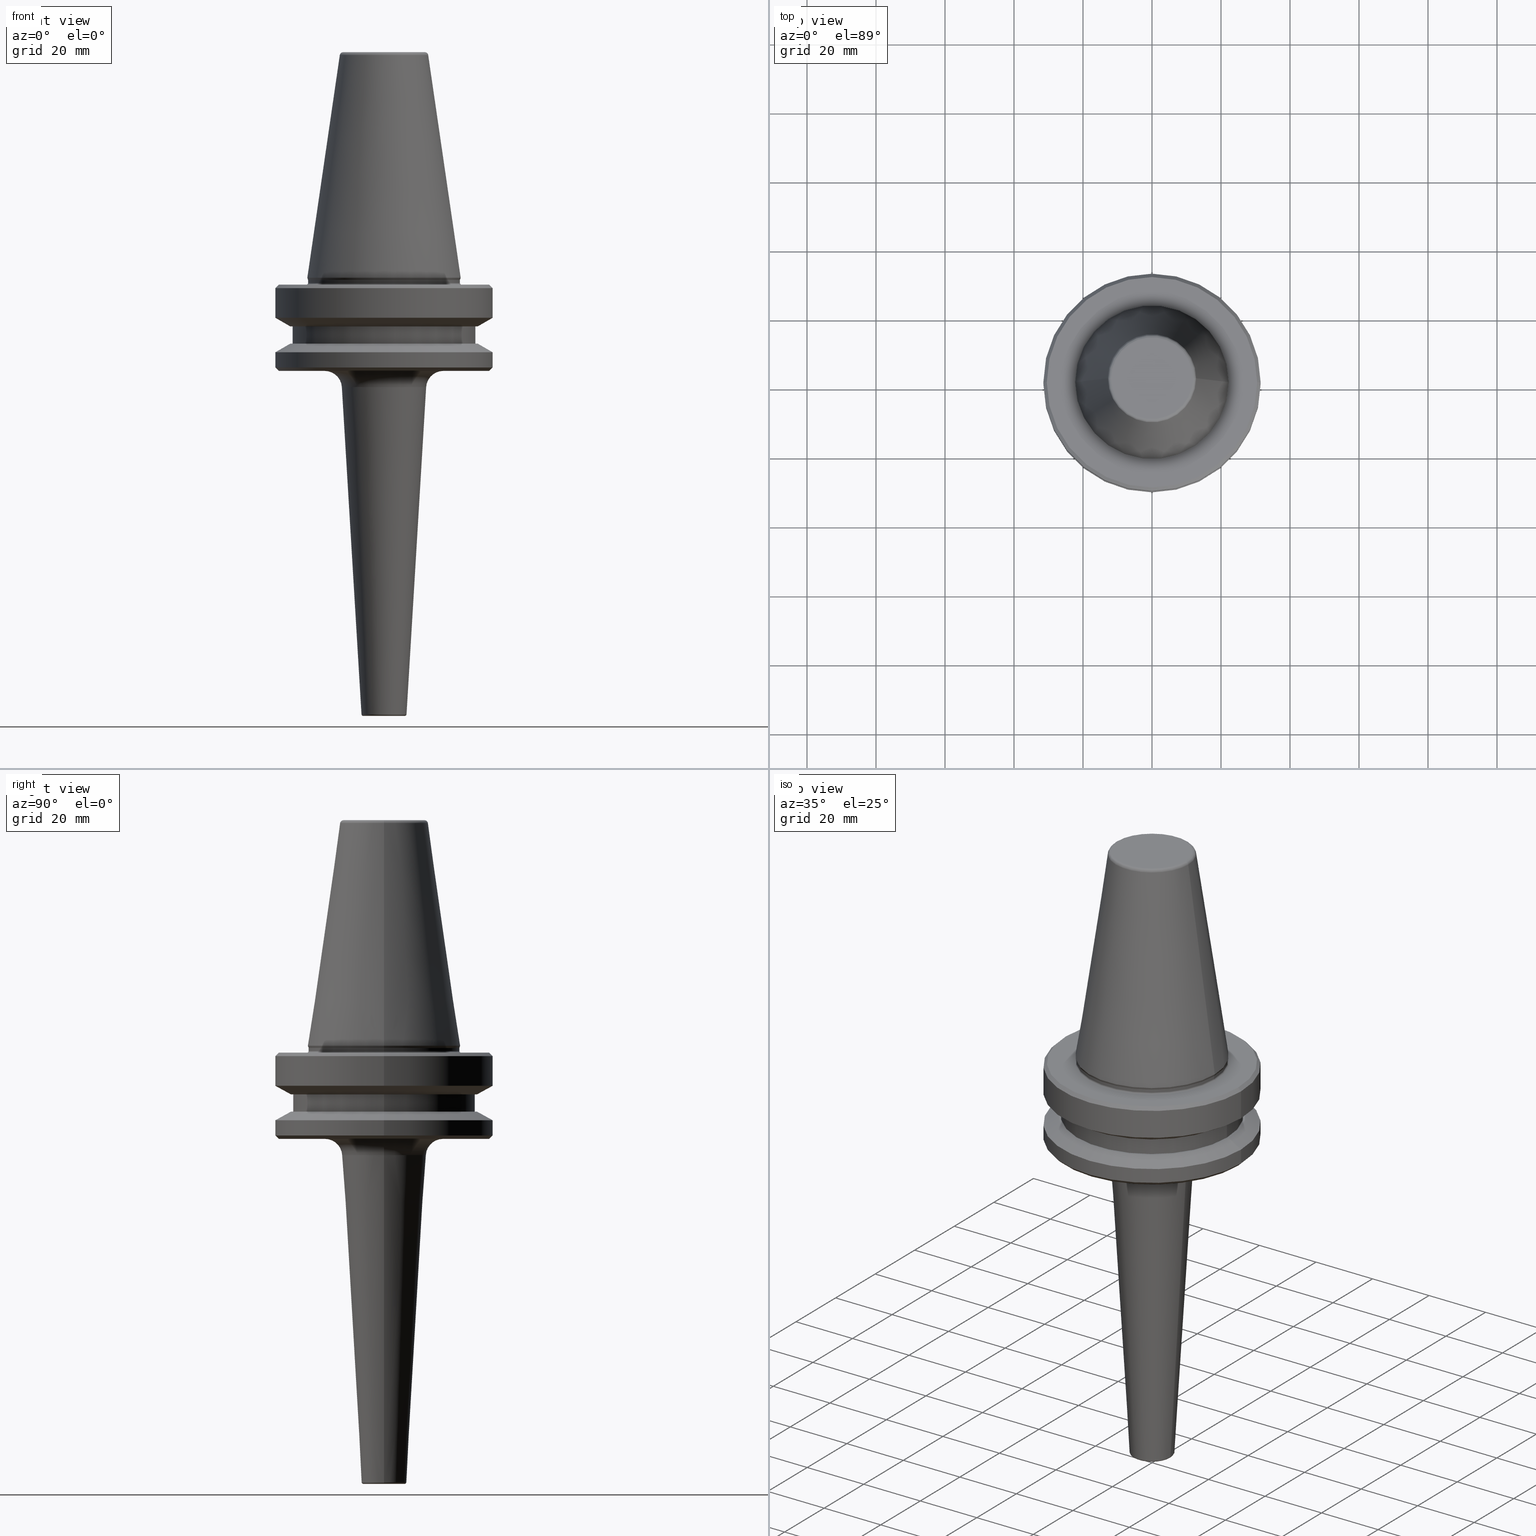
[diagram: canonical four-view strip — front | top / right | iso, engineering-drawing reading convention]
A machine part, canonical four-view strip (front | top / right | iso — engineering-drawing reading convention). The complete STEP part file that produces these views, byte-faithful:
ISO-10303-21;
HEADER;
FILE_DESCRIPTION (( 'STEP AP203' ),
    '1' );
FILE_NAME ('BT40 MCA08 100 AD+B-2.5G 25000 SL.STEP',
    '2019-05-24T09:53:17',
    ( '' ),
    ( '' ),
    'SwSTEP 2.0',
    'SolidWorks 2014',
    '' );
FILE_SCHEMA (( 'CONFIG_CONTROL_DESIGN' ));
ENDSEC;

DATA;
#1 = AXIS2_PLACEMENT_3D ( 'NONE', #918, #335, #358 ) ;
#2 = VERTEX_POINT ( 'NONE', #705 ) ;
#3 = CARTESIAN_POINT ( 'NONE',  ( -31.50000000000008500, 3.857637417314172900E-015, 6.357346922996331500 ) ) ;
#4 = DIRECTION ( 'NONE',  ( 0.0000000000000000000, -1.000000000000000000, 0.0000000000000000000 ) ) ;
#5 = DIRECTION ( 'NONE',  ( -0.0000000000000000000, -0.0000000000000000000, 1.000000000000000000 ) ) ;
#6 = AXIS2_PLACEMENT_3D ( 'NONE', #187, #154, #687 ) ;
#7 = VERTEX_POINT ( 'NONE', #206 ) ;
#8 = CIRCLE ( 'NONE', #430, 30.49999999999997200 ) ;
#9 = ORIENTED_EDGE ( 'NONE', *, *, #972, .F. ) ;
#10 = ORIENTED_EDGE ( 'NONE', *, *, #729, .T. ) ;
#11 = LINE ( 'NONE', #58, #420 ) ;
#12 = CARTESIAN_POINT ( 'NONE',  ( 12.81220206925736900, 2.145409868259749100E-015, -0.8556918111122247000 ) ) ;
#13 = AXIS2_PLACEMENT_3D ( 'NONE', #587, #934, #557 ) ;
#14 = CIRCLE ( 'NONE', #1045, 26.50000000000019200 ) ;
#15 = CARTESIAN_POINT ( 'NONE',  ( -22.00000000000002100, 2.724839128102860200E-015, -66.90000000000040400 ) ) ;
#16 = DATE_AND_TIME ( #235, #451 ) ;
#17 = CARTESIAN_POINT ( 'NONE',  ( 26.50000000000019200, 0.0000000000000000000, -84.50000000000068200 ) ) ;
#18 = CARTESIAN_POINT ( 'NONE',  ( 0.0000000000000000000, 0.0000000000000000000, -192.4000000000081100 ) ) ;
#19 = VERTEX_POINT ( 'NONE', #685 ) ;
#20 = CARTESIAN_POINT ( 'NONE',  ( 31.50000000000008500, 0.0000000000000000000, -68.40000000000046000 ) ) ;
#21 = CARTESIAN_POINT ( 'NONE',  ( 0.0000000000000000000, 0.0000000000000000000, -97.10053854636835500 ) ) ;
#22 = VECTOR ( 'NONE', #913, 1000.000000000000000 ) ;
#23 = FACE_OUTER_BOUND ( 'NONE', #304, .T. ) ;
#24 = EDGE_CURVE ( 'NONE', #2, #648, #708, .T. ) ;
#25 = ORIENTED_EDGE ( 'NONE', *, *, #953, .F. ) ;
#26 = EDGE_CURVE ( 'NONE', #228, #637, #274, .T. ) ;
#27 = AXIS2_PLACEMENT_3D ( 'NONE', #691, #695, #188 ) ;
#28 = VERTEX_POINT ( 'NONE', #978 ) ;
#29 = DIRECTION ( 'NONE',  ( -0.0000000000000000000, -0.0000000000000000000, 1.000000000000000000 ) ) ;
#30 = VECTOR ( 'NONE', #101, 1000.000000000000000 ) ;
#31 = CC_DESIGN_PERSON_AND_ORGANIZATION_ASSIGNMENT ( #567, #226, ( #452 ) ) ;
#32 = DIRECTION ( 'NONE',  ( -0.05989229072794676600, 7.334690213358271200E-018, 0.9982048454657787000 ) ) ;
#33 = ORIENTED_EDGE ( 'NONE', *, *, #1053, .T. ) ;
#34 = ORIENTED_EDGE ( 'NONE', *, *, #751, .T. ) ;
#35 = CIRCLE ( 'NONE', #375, 22.22499999999993700 ) ;
#36 = CARTESIAN_POINT ( 'NONE',  ( 0.0000000000000000000, 0.0000000000000000000, -191.9000000000083900 ) ) ;
#37 = DIRECTION ( 'NONE',  ( -0.0000000000000000000, -0.0000000000000000000, 1.000000000000000000 ) ) ;
#38 = CIRCLE ( 'NONE', #42, 6.029100808545551100 ) ;
#39 = AXIS2_PLACEMENT_3D ( 'NONE', #504, #1026, #363 ) ;
#40 = AXIS2_PLACEMENT_3D ( 'NONE', #845, #461, #164 ) ;
#41 = APPROVAL_DATE_TIME ( #253, #698 ) ;
#42 = AXIS2_PLACEMENT_3D ( 'NONE', #18, #180, #994 ) ;
#43 = DIRECTION ( 'NONE',  ( 1.000000000000000000, 0.0000000000000000000, 0.0000000000000000000 ) ) ;
#44 = ORIENTED_EDGE ( 'NONE', *, *, #756, .F. ) ;
#45 = DIRECTION ( 'NONE',  ( 1.000000000000000000, 0.0000000000000000000, 0.0000000000000000000 ) ) ;
#46 = LINE ( 'NONE', #868, #22 ) ;
#47 = FACE_BOUND ( 'NONE', #400, .T. ) ;
#48 = DIRECTION ( 'NONE',  ( -1.000000000000000000, 0.0000000000000000000, -0.0000000000000000000 ) ) ;
#49 = DIRECTION ( 'NONE',  ( 1.000000000000000000, 0.0000000000000000000, 0.0000000000000000000 ) ) ;
#50 = DIRECTION ( 'NONE',  ( 1.000000000000000000, 0.0000000000000000000, 0.0000000000000000000 ) ) ;
#51 = PLANE ( 'NONE',  #367 ) ;
#52 = FACE_OUTER_BOUND ( 'NONE', #663, .T. ) ;
#53 = CARTESIAN_POINT ( 'NONE',  ( -30.49999999999997200, 0.0000000000000000000, -67.40000000000034700 ) ) ;
#54 = ORIENTED_EDGE ( 'NONE', *, *, #167, .F. ) ;
#55 = ORIENTED_EDGE ( 'NONE', *, *, #236, .F. ) ;
#56 = VECTOR ( 'NONE', #352, 1000.000000000000000 ) ;
#57 = DIRECTION ( 'NONE',  ( -0.0000000000000000000, -0.0000000000000000000, 1.000000000000000000 ) ) ;
#58 = CARTESIAN_POINT ( 'NONE',  ( -31.50000000000008500, 3.857637417314172900E-015, 6.357346922996331500 ) ) ;
#59 = VERTEX_POINT ( 'NONE', #1002 ) ;
#60 = ORIENTED_EDGE ( 'NONE', *, *, #120, .F. ) ;
#61 = CIRCLE ( 'NONE', #987, 27.16962701892322600 ) ;
#62 = AXIS2_PLACEMENT_3D ( 'NONE', #459, #704, #307 ) ;
#63 = ORIENTED_EDGE ( 'NONE', *, *, #1017, .F. ) ;
#64 = CARTESIAN_POINT ( 'NONE',  ( -22.49999999999996400, 2.755455298081540400E-015, -66.90000000000040400 ) ) ;
#65 = AXIS2_PLACEMENT_3D ( 'NONE', #720, #341, #121 ) ;
#66 = DIRECTION ( 'NONE',  ( -1.000000000000000000, 1.224646799147353000E-016, 0.0000000000000000000 ) ) ;
#67 = CONICAL_SURFACE ( 'NONE', #27, 30.49999999999997200, 0.7853981633974482800 ) ;
#68 = PERSON_AND_ORGANIZATION_ROLE ( 'creator' ) ;
#69 = AXIS2_PLACEMENT_3D ( 'NONE', #326, #57, #1008 ) ;
#70 = DIRECTION ( 'NONE',  ( -0.0000000000000000000, -0.0000000000000000000, 1.000000000000000000 ) ) ;
#71 = APPROVAL_PERSON_ORGANIZATION ( #284, #698, #558 ) ;
#72 = APPLICATION_CONTEXT ( 'configuration controlled 3d designs of mechanical parts and assemblies' ) ;
#73 = ORIENTED_EDGE ( 'NONE', *, *, #351, .F. ) ;
#74 = EDGE_LOOP ( 'NONE', ( #571, #872, #949, #276 ) ) ;
#75 = ORIENTED_EDGE ( 'NONE', *, *, #1004, .F. ) ;
#76 = CIRCLE ( 'NONE', #419, 22.49999999999996400 ) ;
#77 = FACE_OUTER_BOUND ( 'NONE', #379, .T. ) ;
#78 = DIRECTION ( 'NONE',  ( 1.000000000000000000, 0.0000000000000000000, 0.0000000000000000000 ) ) ;
#79 = ORIENTED_EDGE ( 'NONE', *, *, #613, .F. ) ;
#80 = DIRECTION ( 'NONE',  ( -0.0000000000000000000, -0.0000000000000000000, 1.000000000000000000 ) ) ;
#81 = AXIS2_PLACEMENT_3D ( 'NONE', #843, #80, #1041 ) ;
#82 = VERTEX_POINT ( 'NONE', #942 ) ;
#83 = AXIS2_PLACEMENT_3D ( 'NONE', #144, #602, #520 ) ;
#84 = VERTEX_POINT ( 'NONE', #20 ) ;
#85 = DIRECTION ( 'NONE',  ( -0.0000000000000000000, -0.0000000000000000000, 1.000000000000000000 ) ) ;
#86 = ORIENTED_EDGE ( 'NONE', *, *, #681, .T. ) ;
#87 = VERTEX_POINT ( 'NONE', #337 ) ;
#88 = FACE_OUTER_BOUND ( 'NONE', #406, .T. ) ;
#89 = ORIENTED_EDGE ( 'NONE', *, *, #624, .F. ) ;
#90 = DIRECTION ( 'NONE',  ( -1.000000000000000000, 0.0000000000000000000, 0.0000000000000000000 ) ) ;
#91 = CARTESIAN_POINT ( 'NONE',  ( 0.0000000000000000000, 0.0000000000000000000, -84.50000000000068200 ) ) ;
#92 = CIRCLE ( 'NONE', #448, 0.9999999999999696900 ) ;
#93 = AXIS2_PLACEMENT_3D ( 'NONE', #21, #1000, #665 ) ;
#94 = CARTESIAN_POINT ( 'NONE',  ( 0.0000000000000000000, 0.0000000000000000000, -79.50000000000012800 ) ) ;
#95 = CARTESIAN_POINT ( 'NONE',  ( 11.82266927716813000, 0.0000000000000000000, -4.440892098500626200E-013 ) ) ;
#96 = DIRECTION ( 'NONE',  ( -0.0000000000000000000, -0.0000000000000000000, 1.000000000000000000 ) ) ;
#97 = AXIS2_PLACEMENT_3D ( 'NONE', #974, #4, #818 ) ;
#98 = ADVANCED_BREP_SHAPE_REPRESENTATION ( 'BT40 MCA08 100 AD+B-2.5G 25000 SL', ( #338, #937 ), #609 ) ;
#99 = CONICAL_SURFACE ( 'NONE', #432, 31.50000000000008500, 1.047197551196597400 ) ;
#100 = CARTESIAN_POINT ( 'NONE',  ( 0.0000000000000000000, 0.0000000000000000000, -65.40000000000057400 ) ) ;
#101 = DIRECTION ( 'NONE',  ( -0.7071067811865474600, 0.0000000000000000000, -0.7071067811865475700 ) ) ;
#102 = COORDINATED_UNIVERSAL_TIME_OFFSET ( 5, 30, .AHEAD. ) ;
#103 = ORIENTED_EDGE ( 'NONE', *, *, #200, .T. ) ;
#104 = DIRECTION ( 'NONE',  ( -0.8660254037844383700, 1.060575238724906500E-016, 0.5000000000000003300 ) ) ;
#105 = AXIS2_PLACEMENT_3D ( 'NONE', #768, #826, #947 ) ;
#106 = DIRECTION ( 'NONE',  ( 1.000000000000000000, 0.0000000000000000000, 0.0000000000000000000 ) ) ;
#107 = CARTESIAN_POINT ( 'NONE',  ( 0.0000000000000000000, 0.0000000000000000000, -76.99985799368391800 ) ) ;
#108 = ORIENTED_EDGE ( 'NONE', *, *, #184, .F. ) ;
#109 = DIRECTION ( 'NONE',  ( -0.0000000000000000000, -0.0000000000000000000, 1.000000000000000000 ) ) ;
#110 = ORIENTED_EDGE ( 'NONE', *, *, #465, .T. ) ;
#111 = CIRCLE ( 'NONE', #982, 22.00000000000002100 ) ;
#112 = EDGE_CURVE ( 'NONE', #553, #605, #925, .T. ) ;
#113 = EDGE_LOOP ( 'NONE', ( #441, #709, #372, #674 ) ) ;
#114 = ORIENTED_EDGE ( 'NONE', *, *, #315, .T. ) ;
#115 = LINE ( 'NONE', #758, #957 ) ;
#116 = CARTESIAN_POINT ( 'NONE',  ( -22.40000000000019800, 2.743208830090095500E-015, -66.08871321165987900 ) ) ;
#117 = CARTESIAN_POINT ( 'NONE',  ( 0.0000000000000000000, 0.0000000000000000000, -92.40000000000803500 ) ) ;
#118 = DIRECTION ( 'NONE',  ( 1.000000000000000000, 0.0000000000000000000, 0.0000000000000000000 ) ) ;
#119 = TOROIDAL_SURFACE ( 'NONE', #514, 11.82266927716813000, 0.9999999999999696900 ) ;
#120 = EDGE_CURVE ( 'NONE', #505, #525, #493, .T. ) ;
#121 = DIRECTION ( 'NONE',  ( 1.000000000000000000, 0.0000000000000000000, 0.0000000000000000000 ) ) ;
#122 = EDGE_CURVE ( 'NONE', #223, #353, #677, .T. ) ;
#123 = CARTESIAN_POINT ( 'NONE',  ( 0.0000000000000000000, 0.0000000000000000000, -97.10053854636835500 ) ) ;
#124 = AXIS2_PLACEMENT_3D ( 'NONE', #1032, #812, #701 ) ;
#125 = FACE_OUTER_BOUND ( 'NONE', #113, .T. ) ;
#126 = EDGE_CURVE ( 'NONE', #227, #622, #894, .T. ) ;
#127 = ADVANCED_FACE ( 'NONE', ( #467, #245 ), #990, .T. ) ;
#128 = DIRECTION ( 'NONE',  ( 1.000000000000000000, 0.0000000000000000000, 0.0000000000000000000 ) ) ;
#129 = PRODUCT_DEFINITION_SHAPE ( 'NONE', 'NONE',  #657 ) ;
#130 = LOCAL_TIME ( 15, 23, 17.00000000000000000, #343 ) ;
#131 = DIRECTION ( 'NONE',  ( 1.000000000000000000, 0.0000000000000000000, 0.0000000000000000000 ) ) ;
#132 = DIRECTION ( 'NONE',  ( -0.0000000000000000000, -0.0000000000000000000, 1.000000000000000000 ) ) ;
#133 = ORIENTED_EDGE ( 'NONE', *, *, #220, .T. ) ;
#134 = ORIENTED_EDGE ( 'NONE', *, *, #607, .T. ) ;
#135 = ORIENTED_EDGE ( 'NONE', *, *, #147, .T. ) ;
#136 = ORIENTED_EDGE ( 'NONE', *, *, #122, .F. ) ;
#137 = DIRECTION ( 'NONE',  ( -0.3420201433262311000, 4.188538737683878900E-017, 0.9396926207857037000 ) ) ;
#138 = EDGE_LOOP ( 'NONE', ( #178, #103, #1038, #469 ) ) ;
#139 = CIRCLE ( 'NONE', #569, 27.16962701892256100 ) ;
#140 = AXIS2_PLACEMENT_3D ( 'NONE', #958, #652, #521 ) ;
#141 = ORIENTED_EDGE ( 'NONE', *, *, #478, .T. ) ;
#142 = ADVANCED_FACE ( 'NONE', ( #224 ), #848, .T. ) ;
#143 = FACE_OUTER_BOUND ( 'NONE', #760, .T. ) ;
#144 = CARTESIAN_POINT ( 'NONE',  ( 0.0000000000000000000, 0.0000000000000000000, -67.40000000000034700 ) ) ;
#145 = ADVANCED_FACE ( 'NONE', ( #649 ), #873, .F. ) ;
#146 = PLANE ( 'NONE',  #148 ) ;
#147 = EDGE_CURVE ( 'NONE', #182, #227, #8, .T. ) ;
#148 = AXIS2_PLACEMENT_3D ( 'NONE', #429, #565, #408 ) ;
#149 = VECTOR ( 'NONE', #254, 1000.000000000000000 ) ;
#150 = ORIENTED_EDGE ( 'NONE', *, *, #290, .T. ) ;
#151 =( NAMED_UNIT ( * ) SI_UNIT ( $, .STERADIAN. ) SOLID_ANGLE_UNIT ( ) );
#152 = ADVANCED_FACE ( 'NONE', ( #626 ), #396, .T. ) ;
#153 = ADVANCED_FACE ( 'NONE', ( #442 ), #146, .T. ) ;
#154 = DIRECTION ( 'NONE',  ( -0.0000000000000000000, -0.0000000000000000000, 1.000000000000000000 ) ) ;
#155 = DIRECTION ( 'NONE',  ( 1.000000000000000000, 0.0000000000000000000, 0.0000000000000000000 ) ) ;
#156 = ORIENTED_EDGE ( 'NONE', *, *, #219, .T. ) ;
#157 = AXIS2_PLACEMENT_3D ( 'NONE', #166, #971, #806 ) ;
#158 = AXIS2_PLACEMENT_3D ( 'NONE', #117, #771, #830 ) ;
#159 = CARTESIAN_POINT ( 'NONE',  ( 31.50000000000008500, 0.0000000000000000000, -91.40000000000037500 ) ) ;
#160 = ORIENTED_EDGE ( 'NONE', *, *, #1036, .T. ) ;
#161 = AXIS2_PLACEMENT_3D ( 'NONE', #202, #673, #938 ) ;
#162 = APPLICATION_CONTEXT ( 'configuration controlled 3d designs of mechanical parts and assemblies' ) ;
#163 = VECTOR ( 'NONE', #879, 1000.000000000000000 ) ;
#164 = DIRECTION ( 'NONE',  ( 1.000000000000000000, 0.0000000000000000000, 0.0000000000000000000 ) ) ;
#165 = EDGE_CURVE ( 'NONE', #507, #637, #416, .T. ) ;
#166 = CARTESIAN_POINT ( 'NONE',  ( 0.0000000000000000000, 0.0000000000000000000, -84.50000000000068200 ) ) ;
#167 = EDGE_CURVE ( 'NONE', #801, #286, #1035, .T. ) ;
#168 = ADVANCED_FACE ( 'NONE', ( #601 ), #196, .T. ) ;
#169 = VECTOR ( 'NONE', #423, 1000.000000000000000 ) ;
#170 = VECTOR ( 'NONE', #386, 1000.000000000000000 ) ;
#171 = AXIS2_PLACEMENT_3D ( 'NONE', #374, #109, #858 ) ;
#172 = CIRCLE ( 'NONE', #1005, 31.50000000000008500 ) ;
#173 = VECTOR ( 'NONE', #764, 1000.000000000000000 ) ;
#174 = ORIENTED_EDGE ( 'NONE', *, *, #607, .F. ) ;
#175 = ORIENTED_EDGE ( 'NONE', *, *, #351, .T. ) ;
#176 = FACE_OUTER_BOUND ( 'NONE', #1014, .T. ) ;
#177 = CARTESIAN_POINT ( 'NONE',  ( 30.49999999999997200, 3.796405077356798300E-015, -67.40000000000034700 ) ) ;
#178 = ORIENTED_EDGE ( 'NONE', *, *, #236, .T. ) ;
#179 = CARTESIAN_POINT ( 'NONE',  ( -26.50000000000019200, 3.245314017740509400E-015, -79.50000000000012800 ) ) ;
#180 = DIRECTION ( 'NONE',  ( -0.0000000000000000000, -0.0000000000000000000, 1.000000000000000000 ) ) ;
#181 = CARTESIAN_POINT ( 'NONE',  ( 0.0000000000000000000, 0.0000000000000000000, -92.40000000000809200 ) ) ;
#182 = VERTEX_POINT ( 'NONE', #177 ) ;
#183 = VERTEX_POINT ( 'NONE', #217 ) ;
#184 = EDGE_CURVE ( 'NONE', #590, #228, #765, .T. ) ;
#185 = CIRCLE ( 'NONE', #65, 17.20899191454727600 ) ;
#186 = DIRECTION ( 'NONE',  ( -0.0000000000000000000, -0.0000000000000000000, 1.000000000000000000 ) ) ;
#187 = CARTESIAN_POINT ( 'NONE',  ( 0.0000000000000000000, 0.0000000000000000000, -191.9000000000083900 ) ) ;
#188 = DIRECTION ( 'NONE',  ( -1.000000000000000000, 0.0000000000000000000, 0.0000000000000000000 ) ) ;
#189 = EDGE_CURVE ( 'NONE', #2, #922, #115, .T. ) ;
#190 = CIRCLE ( 'NONE', #192, 0.4999999999999449300 ) ;
#191 = ADVANCED_FACE ( 'NONE', ( #979 ), #413, .F. ) ;
#192 = AXIS2_PLACEMENT_3D ( 'NONE', #916, #294, #789 ) ;
#193 = DIRECTION ( 'NONE',  ( 1.000000000000000000, 0.0000000000000000000, 0.0000000000000000000 ) ) ;
#194 = DIRECTION ( 'NONE',  ( 1.000000000000000000, 0.0000000000000000000, 0.0000000000000000000 ) ) ;
#195 = ADVANCED_FACE ( 'NONE', ( #738 ), #330, .T. ) ;
#196 = TOROIDAL_SURFACE ( 'NONE', #6, 6.029100808545552000, 0.4999999999996977400 ) ;
#197 = AXIS2_PLACEMENT_3D ( 'NONE', #279, #787, #468 ) ;
#198 = ORIENTED_EDGE ( 'NONE', *, *, #746, .F. ) ;
#199 = EDGE_LOOP ( 'NONE', ( #886, #800, #492, #694 ) ) ;
#200 = EDGE_CURVE ( 'NONE', #183, #629, #527, .T. ) ;
#201 = FACE_OUTER_BOUND ( 'NONE', #323, .T. ) ;
#202 = CARTESIAN_POINT ( 'NONE',  ( 0.0000000000000000000, 0.0000000000000000000, -66.08871321165987900 ) ) ;
#203 = AXIS2_PLACEMENT_3D ( 'NONE', #94, #370, #397 ) ;
#204 = CARTESIAN_POINT ( 'NONE',  ( 12.21796768721838900, 0.0000000000000000000, -97.10053854636835500 ) ) ;
#205 = LOCAL_TIME ( 15, 23, 17.00000000000000000, #426 ) ;
#206 = CARTESIAN_POINT ( 'NONE',  ( 22.00000000000002100, 0.0000000000000000000, -66.90000000000040400 ) ) ;
#207 = ORIENTED_EDGE ( 'NONE', *, *, #741, .T. ) ;
#208 = DIRECTION ( 'NONE',  ( -0.0000000000000000000, -0.0000000000000000000, 1.000000000000000000 ) ) ;
#209 = ADVANCED_FACE ( 'NONE', ( #88 ), #711, .F. ) ;
#210 = ORIENTED_EDGE ( 'NONE', *, *, #986, .T. ) ;
#211 = ORIENTED_EDGE ( 'NONE', *, *, #259, .T. ) ;
#212 = ADVANCED_FACE ( 'NONE', ( #305, #278 ), #910, .F. ) ;
#213 = DIRECTION ( 'NONE',  ( -0.0000000000000000000, -0.0000000000000000000, 1.000000000000000000 ) ) ;
#214 = DIRECTION ( 'NONE',  ( 0.0000000000000000000, 0.0000000000000000000, -1.000000000000000000 ) ) ;
#215 = VECTOR ( 'NONE', #457, 1000.000000000000000 ) ;
#216 = DIRECTION ( 'NONE',  ( -0.0000000000000000000, -0.0000000000000000000, 1.000000000000000000 ) ) ;
#217 = CARTESIAN_POINT ( 'NONE',  ( -27.16962701892322600, 3.592478546794674900E-015, -79.50000000000012800 ) ) ;
#218 = ORIENTED_EDGE ( 'NONE', *, *, #368, .T. ) ;
#219 = EDGE_CURVE ( 'NONE', #605, #553, #899, .T. ) ;
#220 = EDGE_CURVE ( 'NONE', #851, #496, #684, .T. ) ;
#221 = ORIENTED_EDGE ( 'NONE', *, *, #877, .T. ) ;
#222 = DIRECTION ( 'NONE',  ( -0.0000000000000000000, -0.0000000000000000000, 1.000000000000000000 ) ) ;
#223 = VERTEX_POINT ( 'NONE', #679 ) ;
#224 = FACE_OUTER_BOUND ( 'NONE', #383, .T. ) ;
#225 = DIRECTION ( 'NONE',  ( 1.000000000000000000, 0.0000000000000000000, 0.0000000000000000000 ) ) ;
#226 = PERSON_AND_ORGANIZATION_ROLE ( 'classification_officer' ) ;
#227 = VERTEX_POINT ( 'NONE', #53 ) ;
#228 = VERTEX_POINT ( 'NONE', #739 ) ;
#229 = CONICAL_SURFACE ( 'NONE', #827, 12.81220206925736900, 0.1448138077623198300 ) ;
#230 = CARTESIAN_POINT ( 'NONE',  ( 0.0000000000000000000, 0.0000000000000000000, -91.40000000000037500 ) ) ;
#231 = SECURITY_CLASSIFICATION_LEVEL ( 'unclassified' ) ;
#232 = AXIS2_PLACEMENT_3D ( 'NONE', #621, #378, #628 ) ;
#233 = VECTOR ( 'NONE', #660, 1000.000000000000000 ) ;
#234 = MECHANICAL_CONTEXT ( 'NONE', #162, 'mechanical' ) ;
#235 = CALENDAR_DATE ( 2019, 24, 5 ) ;
#236 = EDGE_CURVE ( 'NONE', #82, #183, #61, .T. ) ;
#237 = DIRECTION ( 'NONE',  ( 1.224646799147353200E-016, 1.000000000000000000, 0.0000000000000000000 ) ) ;
#238 = LINE ( 'NONE', #539, #888 ) ;
#239 = CYLINDRICAL_SURFACE ( 'NONE', #511, 31.50000000000008500 ) ;
#240 = DIRECTION ( 'NONE',  ( -0.0000000000000000000, -0.0000000000000000000, 1.000000000000000000 ) ) ;
#241 = ADVANCED_FACE ( 'NONE', ( #249 ), #229, .T. ) ;
#242 = EDGE_CURVE ( 'NONE', #645, #912, #497, .T. ) ;
#243 = DIRECTION ( 'NONE',  ( -0.0000000000000000000, -0.0000000000000000000, 1.000000000000000000 ) ) ;
#244 = ORIENTED_EDGE ( 'NONE', *, *, #242, .T. ) ;
#245 = FACE_BOUND ( 'NONE', #586, .T. ) ;
#246 = DIRECTION ( 'NONE',  ( 1.000000000000000000, 0.0000000000000000000, 0.0000000000000000000 ) ) ;
#247 = ORIENTED_EDGE ( 'NONE', *, *, #989, .T. ) ;
#248 = ORIENTED_EDGE ( 'NONE', *, *, #272, .T. ) ;
#249 = FACE_OUTER_BOUND ( 'NONE', #869, .T. ) ;
#250 = DIRECTION ( 'NONE',  ( 0.0000000000000000000, 0.0000000000000000000, -1.000000000000000000 ) ) ;
#251 = CIRCLE ( 'NONE', #719, 26.50000000000019200 ) ;
#252 = CARTESIAN_POINT ( 'NONE',  ( 0.0000000000000000000, 0.0000000000000000000, 6.357346922996331500 ) ) ;
#253 = DATE_AND_TIME ( #479, #692 ) ;
#254 = DIRECTION ( 'NONE',  ( -0.8660254037844332700, 0.0000000000000000000, -0.5000000000000093300 ) ) ;
#255 = AXIS2_PLACEMENT_3D ( 'NONE', #533, #744, #669 ) ;
#256 = ORIENTED_EDGE ( 'NONE', *, *, #842, .T. ) ;
#257 = ORIENTED_EDGE ( 'NONE', *, *, #636, .T. ) ;
#258 = ORIENTED_EDGE ( 'NONE', *, *, #659, .T. ) ;
#259 = EDGE_CURVE ( 'NONE', #735, #922, #35, .T. ) ;
#260 = DIRECTION ( 'NONE',  ( -1.000000000000000000, 0.0000000000000000000, 0.0000000000000000000 ) ) ;
#261 = FACE_OUTER_BOUND ( 'NONE', #138, .T. ) ;
#262 = CONICAL_SURFACE ( 'NONE', #727, 22.22499999999993700, 0.3490658503994643600 ) ;
#263 = CARTESIAN_POINT ( 'NONE',  ( 0.0000000000000000000, 0.0000000000000000000, 6.357346922996331500 ) ) ;
#264 = CARTESIAN_POINT ( 'NONE',  ( -11.82266927716813000, 1.447859408766170200E-015, -1.000000000000334000 ) ) ;
#265 = EDGE_CURVE ( 'NONE', #288, #59, #878, .T. ) ;
#266 = ORIENTED_EDGE ( 'NONE', *, *, #842, .F. ) ;
#267 = CARTESIAN_POINT ( 'NONE',  ( 0.0000000000000000000, 0.0000000000000000000, -67.40000000000034700 ) ) ;
#268 = AXIS2_PLACEMENT_3D ( 'NONE', #917, #576, #260 ) ;
#269 = DIRECTION ( 'NONE',  ( 1.000000000000000000, 0.0000000000000000000, 0.0000000000000000000 ) ) ;
#270 = ADVANCED_FACE ( 'NONE', ( #471 ), #1040, .T. ) ;
#271 = EDGE_LOOP ( 'NONE', ( #736, #550, #547, #150 ) ) ;
#272 = EDGE_CURVE ( 'NONE', #629, #622, #11, .T. ) ;
#273 = ADVANCED_FACE ( 'NONE', ( #853 ), #608, .T. ) ;
#274 = LINE ( 'NONE', #444, #56 ) ;
#275 = CARTESIAN_POINT ( 'NONE',  ( -17.20899191454727600, 2.107493686470300200E-015, -97.40000000000809200 ) ) ;
#276 = ORIENTED_EDGE ( 'NONE', *, *, #1024, .T. ) ;
#277 = CLOSED_SHELL ( 'NONE', ( #318, #168, #909, #859, #466, #436, #364, #209, #948, #854, #672, #528, #903, #772, #748, #474, #481, #563, #152, #273, #270, #127, #579, #327, #382, #490, #690, #212, #542, #142, #145, #962, #241, #195, #191, #153, #943, #297 ) ) ;
#278 = FACE_OUTER_BOUND ( 'NONE', #328, .T. ) ;
#279 = CARTESIAN_POINT ( 'NONE',  ( 22.40000000000019800, 0.0000000000000000000, -66.08871321165987900 ) ) ;
#280 = ORIENTED_EDGE ( 'NONE', *, *, #986, .F. ) ;
#281 = CARTESIAN_POINT ( 'NONE',  ( 0.0000000000000000000, 0.0000000000000000000, -87.00014200631733300 ) ) ;
#282 = AXIS2_PLACEMENT_3D ( 'NONE', #640, #487, #983 ) ;
#283 = CIRCLE ( 'NONE', #403, 30.49999999999241900 ) ;
#284 = PERSON_AND_ORGANIZATION ( #1054, #718 ) ;
#285 = DIRECTION ( 'NONE',  ( 1.000000000000000000, 0.0000000000000000000, 0.0000000000000000000 ) ) ;
#286 = VERTEX_POINT ( 'NONE', #614 ) ;
#287 = CARTESIAN_POINT ( 'NONE',  ( 22.22499999999993700, 0.0000000000000000000, -65.40000000000057400 ) ) ;
#288 = VERTEX_POINT ( 'NONE', #1021 ) ;
#289 = CARTESIAN_POINT ( 'NONE',  ( 0.0000000000000000000, 0.0000000000000000000, -79.50000000000012800 ) ) ;
#290 = EDGE_CURVE ( 'NONE', #19, #648, #825, .T. ) ;
#291 = CIRCLE ( 'NONE', #349, 0.9999999999999696900 ) ;
#292 = TOROIDAL_SURFACE ( 'NONE', #620, 17.20899191454727600, 5.000000000000000000 ) ;
#293 = DIRECTION ( 'NONE',  ( 1.000000000000000000, 0.0000000000000000000, 0.0000000000000000000 ) ) ;
#294 = DIRECTION ( 'NONE',  ( 0.0000000000000000000, -1.000000000000000000, 0.0000000000000000000 ) ) ;
#295 = APPROVAL_DATE_TIME ( #515, #1055 ) ;
#296 = VERTEX_POINT ( 'NONE', #733 ) ;
#297 = ADVANCED_FACE ( 'NONE', ( #201 ), #820, .T. ) ;
#298 = CARTESIAN_POINT ( 'NONE',  ( -30.49999999999997200, 0.0000000000000000000, -67.40000000000034700 ) ) ;
#299 = DIRECTION ( 'NONE',  ( 1.224646799147353200E-016, 1.000000000000000000, 0.0000000000000000000 ) ) ;
#300 = ORIENTED_EDGE ( 'NONE', *, *, #411, .T. ) ;
#301 = ORIENTED_EDGE ( 'NONE', *, *, #817, .T. ) ;
#302 = CARTESIAN_POINT ( 'NONE',  ( -22.00000000000002100, 2.694222958124179600E-015, -66.08871321165987900 ) ) ;
#303 = VERTEX_POINT ( 'NONE', #179 ) ;
#304 = EDGE_LOOP ( 'NONE', ( #63, #754, #244, #9 ) ) ;
#305 = FACE_BOUND ( 'NONE', #407, .T. ) ;
#306 = ORIENTED_EDGE ( 'NONE', *, *, #788, .T. ) ;
#307 = DIRECTION ( 'NONE',  ( 1.000000000000000000, 0.0000000000000000000, 0.0000000000000000000 ) ) ;
#308 = CC_DESIGN_APPROVAL ( #688, ( #1011 ) ) ;
#309 = FACE_OUTER_BOUND ( 'NONE', #946, .T. ) ;
#310 = APPROVAL_ROLE ( '' ) ;
#311 = AXIS2_PLACEMENT_3D ( 'NONE', #263, #541, #716 ) ;
#312 = EDGE_CURVE ( 'NONE', #286, #496, #802, .T. ) ;
#313 = EDGE_LOOP ( 'NONE', ( #257, #757, #737, #108 ) ) ;
#314 = CIRCLE ( 'NONE', #900, 31.50000000000008500 ) ;
#315 = EDGE_CURVE ( 'NONE', #28, #819, #447, .T. ) ;
#316 = PRODUCT ( 'BT40 MCA08 100 AD+B-2.5G 25000 SL', 'BT40 MCA08 100 AD+B-2.5G 25000 SL', '', ( #234 ) ) ;
#317 = CARTESIAN_POINT ( 'NONE',  ( 0.0000000000000000000, 0.0000000000000000000, -68.40000000000046000 ) ) ;
#318 = ADVANCED_FACE ( 'NONE', ( #1015 ), #821, .T. ) ;
#319 = APPROVAL_PERSON_ORGANIZATION ( #540, #1055, #310 ) ;
#320 = CARTESIAN_POINT ( 'NONE',  ( -22.00000000000002100, 2.694222958124179600E-015, 6.357346922996331500 ) ) ;
#321 = ORIENTED_EDGE ( 'NONE', *, *, #360, .T. ) ;
#322 = ORIENTED_EDGE ( 'NONE', *, *, #953, .T. ) ;
#323 = EDGE_LOOP ( 'NONE', ( #415, #928, #647, #506 ) ) ;
#324 = VECTOR ( 'NONE', #392, 1000.000000000000000 ) ;
#325 = CC_DESIGN_APPROVAL ( #1055, ( #452 ) ) ;
#326 = CARTESIAN_POINT ( 'NONE',  ( 0.0000000000000000000, 0.0000000000000000000, -66.90000000000040400 ) ) ;
#327 = ADVANCED_FACE ( 'NONE', ( #52, #631 ), #715, .F. ) ;
#328 = EDGE_LOOP ( 'NONE', ( #300, #135 ) ) ;
#329 = EDGE_LOOP ( 'NONE', ( #863, #156 ) ) ;
#330 = TOROIDAL_SURFACE ( 'NONE', #896, 11.82266927716813000, 0.9999999999999696900 ) ;
#331 = EDGE_CURVE ( 'NONE', #885, #645, #1037, .T. ) ;
#332 = DIRECTION ( 'NONE',  ( -0.0000000000000000000, -0.0000000000000000000, 1.000000000000000000 ) ) ;
#333 = DIRECTION ( 'NONE',  ( -0.0000000000000000000, -0.0000000000000000000, 1.000000000000000000 ) ) ;
#334 = LINE ( 'NONE', #204, #960 ) ;
#335 = DIRECTION ( 'NONE',  ( -0.0000000000000000000, -0.0000000000000000000, 1.000000000000000000 ) ) ;
#336 = EDGE_CURVE ( 'NONE', #956, #735, #604, .T. ) ;
#337 = CARTESIAN_POINT ( 'NONE',  ( 22.49999999999996400, 0.0000000000000000000, -67.40000000000034700 ) ) ;
#338 = MANIFOLD_SOLID_BREP ( 'Revolve1', #277 ) ;
#339 = CARTESIAN_POINT ( 'NONE',  ( 0.0000000000000000000, 0.0000000000000000000, -66.90000000000040400 ) ) ;
#340 = CYLINDRICAL_SURFACE ( 'NONE', #40, 22.00000000000002100 ) ;
#341 = DIRECTION ( 'NONE',  ( -0.0000000000000000000, -0.0000000000000000000, 1.000000000000000000 ) ) ;
#342 = DIRECTION ( 'NONE',  ( -0.0000000000000000000, -0.0000000000000000000, 1.000000000000000000 ) ) ;
#343 = COORDINATED_UNIVERSAL_TIME_OFFSET ( 5, 30, .AHEAD. ) ;
#344 = DIRECTION ( 'NONE',  ( 1.000000000000000000, 0.0000000000000000000, 0.0000000000000000000 ) ) ;
#345 = DIRECTION ( 'NONE',  ( 1.000000000000000000, 0.0000000000000000000, 0.0000000000000000000 ) ) ;
#346 = DIRECTION ( 'NONE',  ( -0.0000000000000000000, -0.0000000000000000000, 1.000000000000000000 ) ) ;
#347 = ORIENTED_EDGE ( 'NONE', *, *, #434, .T. ) ;
#348 = VERTEX_POINT ( 'NONE', #816 ) ;
#349 = AXIS2_PLACEMENT_3D ( 'NONE', #670, #749, #617 ) ;
#350 = ORIENTED_EDGE ( 'NONE', *, *, #1030, .T. ) ;
#351 = EDGE_CURVE ( 'NONE', #84, #622, #799, .T. ) ;
#352 = DIRECTION ( 'NONE',  ( -0.0000000000000000000, -0.0000000000000000000, 1.000000000000000000 ) ) ;
#353 = VERTEX_POINT ( 'NONE', #12 ) ;
#354 = CARTESIAN_POINT ( 'NONE',  ( 0.0000000000000000000, 0.0000000000000000000, -84.50000000000068200 ) ) ;
#355 = VECTOR ( 'NONE', #792, 1000.000000000000100 ) ;
#356 = DIRECTION ( 'NONE',  ( 1.000000000000000000, 0.0000000000000000000, 0.0000000000000000000 ) ) ;
#357 = DIRECTION ( 'NONE',  ( 0.0000000000000000000, 0.0000000000000000000, -1.000000000000000000 ) ) ;
#358 = DIRECTION ( 'NONE',  ( 1.000000000000000000, 0.0000000000000000000, 0.0000000000000000000 ) ) ;
#359 = DIRECTION ( 'NONE',  ( 1.000000000000000000, 0.0000000000000000000, 0.0000000000000000000 ) ) ;
#360 = EDGE_CURVE ( 'NONE', #28, #507, #371, .T. ) ;
#361 = CYLINDRICAL_SURFACE ( 'NONE', #997, 31.50000000000008500 ) ;
#362 = EDGE_CURVE ( 'NONE', #183, #82, #1012, .T. ) ;
#363 = DIRECTION ( 'NONE',  ( 1.000000000000000000, 0.0000000000000000000, 0.0000000000000000000 ) ) ;
#364 = ADVANCED_FACE ( 'NONE', ( #581 ), #340, .T. ) ;
#365 = VECTOR ( 'NONE', #991, 1000.000000000000000 ) ;
#366 = CARTESIAN_POINT ( 'NONE',  ( 0.0000000000000000000, 0.0000000000000000000, -0.8556918111122247000 ) ) ;
#367 = AXIS2_PLACEMENT_3D ( 'NONE', #920, #941, #359 ) ;
#368 = EDGE_CURVE ( 'NONE', #505, #288, #564, .T. ) ;
#369 = ORIENTED_EDGE ( 'NONE', *, *, #126, .F. ) ;
#370 = DIRECTION ( 'NONE',  ( 0.0000000000000000000, -0.0000000000000000000, 1.000000000000000000 ) ) ;
#371 = LINE ( 'NONE', #384, #149 ) ;
#372 = ORIENTED_EDGE ( 'NONE', *, *, #763, .T. ) ;
#373 = ORIENTED_EDGE ( 'NONE', *, *, #434, .F. ) ;
#374 = CARTESIAN_POINT ( 'NONE',  ( 0.0000000000000000000, 0.0000000000000000000, 6.357346922996331500 ) ) ;
#375 = AXIS2_PLACEMENT_3D ( 'NONE', #782, #132, #734 ) ;
#376 = EDGE_CURVE ( 'NONE', #637, #507, #988, .T. ) ;
#377 = ORIENTED_EDGE ( 'NONE', *, *, #219, .F. ) ;
#378 = DIRECTION ( 'NONE',  ( -0.0000000000000000000, -0.0000000000000000000, 1.000000000000000000 ) ) ;
#379 = EDGE_LOOP ( 'NONE', ( #483, #417, #671, #60 ) ) ;
#380 = ORIENTED_EDGE ( 'NONE', *, *, #362, .F. ) ;
#381 = ORIENTED_EDGE ( 'NONE', *, *, #24, .T. ) ;
#382 = ADVANCED_FACE ( 'NONE', ( #125 ), #99, .T. ) ;
#383 = EDGE_LOOP ( 'NONE', ( #610, #753, #499, #592 ) ) ;
#384 = CARTESIAN_POINT ( 'NONE',  ( -31.50000000000008500, 0.0000000000000000000, -87.00014200631733300 ) ) ;
#385 = LINE ( 'NONE', #1022, #163 ) ;
#386 = DIRECTION ( 'NONE',  ( -0.1443081888881795900, 0.0000000000000000000, -0.9895327920891826600 ) ) ;
#387 = EDGE_CURVE ( 'NONE', #348, #629, #314, .T. ) ;
#388 = DESIGN_CONTEXT ( 'detailed design', #72, 'design' ) ;
#389 = DIRECTION ( 'NONE',  ( 0.1443081888881795900, 1.767265616126607700E-017, -0.9895327920891826600 ) ) ;
#390 = DIRECTION ( 'NONE',  ( 1.000000000000000000, 0.0000000000000000000, 0.0000000000000000000 ) ) ;
#391 = LINE ( 'NONE', #3, #169 ) ;
#392 = DIRECTION ( 'NONE',  ( -0.0000000000000000000, -0.0000000000000000000, 1.000000000000000000 ) ) ;
#393 = CARTESIAN_POINT ( 'NONE',  ( 0.0000000000000000000, 0.0000000000000000000, -91.40000000000037500 ) ) ;
#394 = DIRECTION ( 'NONE',  ( 1.000000000000000000, 0.0000000000000000000, 0.0000000000000000000 ) ) ;
#395 = DATE_TIME_ROLE ( 'creation_date' ) ;
#396 = CONICAL_SURFACE ( 'NONE', #882, 31.50000000000008500, 0.7853981633974500600 ) ;
#397 = DIRECTION ( 'NONE',  ( 1.000000000000000000, 0.0000000000000000000, 0.0000000000000000000 ) ) ;
#398 = CIRCLE ( 'NONE', #1029, 0.4999999999999449300 ) ;
#399 = ORIENTED_EDGE ( 'NONE', *, *, #122, .T. ) ;
#400 = EDGE_LOOP ( 'NONE', ( #218, #807 ) ) ;
#401 = APPROVAL_DATE_TIME ( #658, #688 ) ;
#402 = APPROVAL_ROLE ( '' ) ;
#403 = AXIS2_PLACEMENT_3D ( 'NONE', #498, #342, #861 ) ;
#404 = EDGE_LOOP ( 'NONE', ( #266, #141, #463, #625 ) ) ;
#405 = AXIS2_PLACEMENT_3D ( 'NONE', #811, #502, #250 ) ;
#406 = EDGE_LOOP ( 'NONE', ( #824, #1039, #745, #1013 ) ) ;
#407 = EDGE_LOOP ( 'NONE', ( #373, #79 ) ) ;
#408 = DIRECTION ( 'NONE',  ( -1.000000000000000000, 0.0000000000000000000, -0.0000000000000000000 ) ) ;
#409 = CIRCLE ( 'NONE', #813, 12.21796768721838900 ) ;
#410 = DIRECTION ( 'NONE',  ( 1.000000000000000000, 0.0000000000000000000, 0.0000000000000000000 ) ) ;
#411 = EDGE_CURVE ( 'NONE', #227, #182, #967, .T. ) ;
#412 = DIRECTION ( 'NONE',  ( -0.0000000000000000000, -0.0000000000000000000, 1.000000000000000000 ) ) ;
#413 = PLANE ( 'NONE',  #773 ) ;
#414 = AXIS2_PLACEMENT_3D ( 'NONE', #871, #425, #595 ) ;
#415 = ORIENTED_EDGE ( 'NONE', *, *, #642, .F. ) ;
#416 = CIRCLE ( 'NONE', #282, 31.50000000000008500 ) ;
#417 = ORIENTED_EDGE ( 'NONE', *, *, #265, .T. ) ;
#418 = ORIENTED_EDGE ( 'NONE', *, *, #781, .F. ) ;
#419 = AXIS2_PLACEMENT_3D ( 'NONE', #857, #1020, #356 ) ;
#420 = VECTOR ( 'NONE', #573, 1000.000000000000000 ) ;
#421 = CARTESIAN_POINT ( 'NONE',  ( 0.0000000000000000000, 0.0000000000000000000, -84.50000000000068200 ) ) ;
#422 = EDGE_CURVE ( 'NONE', #713, #999, #398, .T. ) ;
#423 = DIRECTION ( 'NONE',  ( -0.0000000000000000000, -0.0000000000000000000, 1.000000000000000000 ) ) ;
#424 = ORIENTED_EDGE ( 'NONE', *, *, #972, .T. ) ;
#425 = DIRECTION ( 'NONE',  ( -0.0000000000000000000, -0.0000000000000000000, 1.000000000000000000 ) ) ;
#426 = COORDINATED_UNIVERSAL_TIME_OFFSET ( 5, 30, .AHEAD. ) ;
#427 = CC_DESIGN_PERSON_AND_ORGANIZATION_ASSIGNMENT ( #503, #881, ( #316 ) ) ;
#428 = CIRCLE ( 'NONE', #836, 31.50000000000008500 ) ;
#429 = CARTESIAN_POINT ( 'NONE',  ( 0.0000000000000000000, -8.857328676405860500E-013, -192.4000000000080800 ) ) ;
#430 = AXIS2_PLACEMENT_3D ( 'NONE', #267, #208, #815 ) ;
#431 = CARTESIAN_POINT ( 'NONE',  ( 0.0000000000000000000, 0.0000000000000000000, -65.40000000000057400 ) ) ;
#432 = AXIS2_PLACEMENT_3D ( 'NONE', #950, #766, #783 ) ;
#433 = DIRECTION ( 'NONE',  ( -0.0000000000000000000, -0.0000000000000000000, 1.000000000000000000 ) ) ;
#434 = EDGE_CURVE ( 'NONE', #87, #999, #747, .T. ) ;
#435 = CARTESIAN_POINT ( 'NONE',  ( -11.82266927716813000, 1.508450817090336800E-015, -4.440892098500626200E-013 ) ) ;
#436 = ADVANCED_FACE ( 'NONE', ( #777 ), #940, .F. ) ;
#437 = CARTESIAN_POINT ( 'NONE',  ( 0.0000000000000000000, 0.0000000000000000000, -65.40000000000057400 ) ) ;
#438 = DIRECTION ( 'NONE',  ( 1.000000000000000000, 0.0000000000000000000, 0.0000000000000000000 ) ) ;
#439 = DIRECTION ( 'NONE',  ( -0.0000000000000000000, -0.0000000000000000000, 1.000000000000000000 ) ) ;
#440 = ORIENTED_EDGE ( 'NONE', *, *, #891, .T. ) ;
#441 = ORIENTED_EDGE ( 'NONE', *, *, #200, .F. ) ;
#442 = FACE_OUTER_BOUND ( 'NONE', #844, .T. ) ;
#443 = DIRECTION ( 'NONE',  ( 1.000000000000000000, 0.0000000000000000000, 0.0000000000000000000 ) ) ;
#444 = CARTESIAN_POINT ( 'NONE',  ( 31.50000000000008500, 0.0000000000000000000, 6.357346922996331500 ) ) ;
#445 = ORIENTED_EDGE ( 'NONE', *, *, #939, .F. ) ;
#446 = ORIENTED_EDGE ( 'NONE', *, *, #642, .T. ) ;
#447 = CIRCLE ( 'NONE', #157, 27.16962701892256100 ) ;
#448 = AXIS2_PLACEMENT_3D ( 'NONE', #264, #299, #66 ) ;
#449 = DIRECTION ( 'NONE',  ( 1.000000000000000000, 0.0000000000000000000, 0.0000000000000000000 ) ) ;
#450 = LINE ( 'NONE', #635, #170 ) ;
#451 = LOCAL_TIME ( 15, 23, 17.00000000000000000, #661 ) ;
#452 = SECURITY_CLASSIFICATION ( '', '', #231 ) ;
#453 = CARTESIAN_POINT ( 'NONE',  ( 0.0000000000000000000, 0.0000000000000000000, -1.000000000000334000 ) ) ;
#454 = CARTESIAN_POINT ( 'NONE',  ( 0.0000000000000000000, 0.0000000000000000000, -67.40000000000034700 ) ) ;
#455 = VECTOR ( 'NONE', #32, 1000.000000000000000 ) ;
#456 = TOROIDAL_SURFACE ( 'NONE', #530, 22.49999999999996400, 0.4999999999999449300 ) ;
#457 = DIRECTION ( 'NONE',  ( 0.8660254037844332700, 1.060575238724900300E-016, -0.5000000000000093300 ) ) ;
#458 = DIRECTION ( 'NONE',  ( 1.000000000000000000, 0.0000000000000000000, 0.0000000000000000000 ) ) ;
#459 = CARTESIAN_POINT ( 'NONE',  ( 0.0000000000000000000, 0.0000000000000000000, -79.50000000000012800 ) ) ;
#460 = DIRECTION ( 'NONE',  ( -0.0000000000000000000, -0.0000000000000000000, 1.000000000000000000 ) ) ;
#461 = DIRECTION ( 'NONE',  ( -0.0000000000000000000, -0.0000000000000000000, 1.000000000000000000 ) ) ;
#462 = EDGE_LOOP ( 'NONE', ( #616, #523, #805, #491 ) ) ;
#463 = ORIENTED_EDGE ( 'NONE', *, *, #26, .T. ) ;
#464 = CARTESIAN_POINT ( 'NONE',  ( 22.00000000000002100, 0.0000000000000000000, 6.357346922996331500 ) ) ;
#465 = EDGE_CURVE ( 'NONE', #922, #735, #537, .T. ) ;
#466 = ADVANCED_FACE ( 'NONE', ( #510 ), #262, .T. ) ;
#467 = FACE_OUTER_BOUND ( 'NONE', #470, .T. ) ;
#468 = DIRECTION ( 'NONE',  ( 0.0000000000000000000, 0.0000000000000000000, -1.000000000000000000 ) ) ;
#469 = ORIENTED_EDGE ( 'NONE', *, *, #763, .F. ) ;
#470 = EDGE_LOOP ( 'NONE', ( #114, #306 ) ) ;
#471 = FACE_OUTER_BOUND ( 'NONE', #931, .T. ) ;
#472 = DIRECTION ( 'NONE',  ( 1.000000000000000000, 0.0000000000000000000, 0.0000000000000000000 ) ) ;
#473 = APPROVAL_STATUS ( 'not_yet_approved' ) ;
#474 = ADVANCED_FACE ( 'NONE', ( #77 ), #292, .F. ) ;
#475 = CONICAL_SURFACE ( 'NONE', #849, 22.22499999999993700, 0.3490658503994643600 ) ;
#476 = CARTESIAN_POINT ( 'NONE',  ( 0.0000000000000000000, 0.0000000000000000000, -65.95190515433003500 ) ) ;
#477 = DIRECTION ( 'NONE',  ( 1.000000000000000000, 0.0000000000000000000, 0.0000000000000000000 ) ) ;
#478 = EDGE_CURVE ( 'NONE', #296, #228, #697, .T. ) ;
#479 = CALENDAR_DATE ( 2019, 24, 5 ) ;
#480 = AXIS2_PLACEMENT_3D ( 'NONE', #123, #538, #438 ) ;
#481 = ADVANCED_FACE ( 'NONE', ( #486 ), #915, .F. ) ;
#482 = ORIENTED_EDGE ( 'NONE', *, *, #147, .F. ) ;
#483 = ORIENTED_EDGE ( 'NONE', *, *, #726, .F. ) ;
#484 =( LENGTH_UNIT ( ) NAMED_UNIT ( * ) SI_UNIT ( .MILLI., .METRE. ) );
#485 = CIRCLE ( 'NONE', #158, 30.49999999999241900 ) ;
#486 = FACE_OUTER_BOUND ( 'NONE', #973, .T. ) ;
#487 = DIRECTION ( 'NONE',  ( -0.0000000000000000000, -0.0000000000000000000, 1.000000000000000000 ) ) ;
#488 = AXIS2_PLACEMENT_3D ( 'NONE', #797, #346, #269 ) ;
#489 = AXIS2_PLACEMENT_3D ( 'NONE', #476, #907, #246 ) ;
#490 = ADVANCED_FACE ( 'NONE', ( #725 ), #239, .T. ) ;
#491 = ORIENTED_EDGE ( 'NONE', *, *, #242, .F. ) ;
#492 = ORIENTED_EDGE ( 'NONE', *, *, #259, .F. ) ;
#493 = CIRCLE ( 'NONE', #405, 5.000000000000004400 ) ;
#494 = DIRECTION ( 'NONE',  ( 0.7071067811865487900, 0.0000000000000000000, 0.7071067811865463500 ) ) ;
#495 = EDGE_LOOP ( 'NONE', ( #936, #446, #198, #445 ) ) ;
#496 = VERTEX_POINT ( 'NONE', #995 ) ;
#497 = LINE ( 'NONE', #676, #655 ) ;
#498 = CARTESIAN_POINT ( 'NONE',  ( 0.0000000000000000000, 0.0000000000000000000, -92.40000000000803500 ) ) ;
#499 = ORIENTED_EDGE ( 'NONE', *, *, #781, .T. ) ;
#500 = LINE ( 'NONE', #1028, #532 ) ;
#501 = AXIS2_PLACEMENT_3D ( 'NONE', #289, #85, #128 ) ;
#502 = DIRECTION ( 'NONE',  ( 0.0000000000000000000, -1.000000000000000000, 0.0000000000000000000 ) ) ;
#503 = PERSON_AND_ORGANIZATION ( #1054, #718 ) ;
#504 = CARTESIAN_POINT ( 'NONE',  ( 0.0000000000000000000, 0.0000000000000000000, -68.40000000000046000 ) ) ;
#505 = VERTEX_POINT ( 'NONE', #985 ) ;
#506 = ORIENTED_EDGE ( 'NONE', *, *, #970, .F. ) ;
#507 = VERTEX_POINT ( 'NONE', #1007 ) ;
#508 = CC_DESIGN_DATE_AND_TIME_ASSIGNMENT ( #750, #963, ( #452 ) ) ;
#509 = CARTESIAN_POINT ( 'NONE',  ( 0.0000000000000000000, 0.0000000000000000000, -66.90000000000040400 ) ) ;
#510 = FACE_OUTER_BOUND ( 'NONE', #199, .T. ) ;
#511 = AXIS2_PLACEMENT_3D ( 'NONE', #862, #519, #390 ) ;
#512 = PRODUCT_RELATED_PRODUCT_CATEGORY ( 'detail', '', ( #316 ) ) ;
#513 = CARTESIAN_POINT ( 'NONE',  ( -26.50000000000019200, 3.245314017740509400E-015, -84.50000000000068200 ) ) ;
#514 = AXIS2_PLACEMENT_3D ( 'NONE', #453, #524, #522 ) ;
#515 = DATE_AND_TIME ( #730, #945 ) ;
#516 = ORIENTED_EDGE ( 'NONE', *, *, #272, .F. ) ;
#517 = DIRECTION ( 'NONE',  ( 1.000000000000000000, 0.0000000000000000000, 0.0000000000000000000 ) ) ;
#518 = DIRECTION ( 'NONE',  ( 0.7071067811865474600, 8.659560562354931600E-017, -0.7071067811865475700 ) ) ;
#519 = DIRECTION ( 'NONE',  ( -0.0000000000000000000, -0.0000000000000000000, 1.000000000000000000 ) ) ;
#520 = DIRECTION ( 'NONE',  ( -1.000000000000000000, 0.0000000000000000000, 0.0000000000000000000 ) ) ;
#521 = DIRECTION ( 'NONE',  ( 1.000000000000000000, 0.0000000000000000000, 0.0000000000000000000 ) ) ;
#522 = DIRECTION ( 'NONE',  ( 1.000000000000000000, 0.0000000000000000000, 0.0000000000000000000 ) ) ;
#523 = ORIENTED_EDGE ( 'NONE', *, *, #1017, .T. ) ;
#524 = DIRECTION ( 'NONE',  ( -0.0000000000000000000, -0.0000000000000000000, 1.000000000000000000 ) ) ;
#525 = VERTEX_POINT ( 'NONE', #926 ) ;
#526 = ORIENTED_EDGE ( 'NONE', *, *, #184, .T. ) ;
#527 = LINE ( 'NONE', #795, #929 ) ;
#528 = ADVANCED_FACE ( 'NONE', ( #889 ), #866, .T. ) ;
#529 = CARTESIAN_POINT ( 'NONE',  ( 26.50000000000019200, 0.0000000000000000000, -79.50000000000012800 ) ) ;
#530 = AXIS2_PLACEMENT_3D ( 'NONE', #339, #835, #906 ) ;
#531 = ORIENTED_EDGE ( 'NONE', *, *, #165, .T. ) ;
#532 = VECTOR ( 'NONE', #518, 1000.000000000000000 ) ;
#533 = CARTESIAN_POINT ( 'NONE',  ( 0.0000000000000000000, 0.0000000000000000000, -84.50000000000068200 ) ) ;
#534 = CARTESIAN_POINT ( 'NONE',  ( -22.22499999999993700, 2.721777511104985000E-015, -65.40000000000057400 ) ) ;
#535 = DIRECTION ( 'NONE',  ( 1.000000000000000000, 0.0000000000000000000, 0.0000000000000000000 ) ) ;
#536 = CARTESIAN_POINT ( 'NONE',  ( 0.0000000000000000000, 0.0000000000000000000, -4.440892098500626200E-013 ) ) ;
#537 = CIRCLE ( 'NONE', #847, 22.22499999999993700 ) ;
#538 = DIRECTION ( 'NONE',  ( -0.0000000000000000000, -0.0000000000000000000, 1.000000000000000000 ) ) ;
#539 = CARTESIAN_POINT ( 'NONE',  ( 12.81220206925736900, 1.569042225414513200E-015, -0.8556918111122247000 ) ) ;
#540 = PERSON_AND_ORGANIZATION ( #1054, #718 ) ;
#541 = DIRECTION ( 'NONE',  ( -0.0000000000000000000, -0.0000000000000000000, 1.000000000000000000 ) ) ;
#542 = ADVANCED_FACE ( 'NONE', ( #667 ), #456, .F. ) ;
#543 = CARTESIAN_POINT ( 'NONE',  ( 0.0000000000000000000, 0.0000000000000000000, -97.40000000000809200 ) ) ;
#544 = ORIENTED_EDGE ( 'NONE', *, *, #376, .F. ) ;
#545 = DIRECTION ( 'NONE',  ( -1.000000000000000000, 0.0000000000000000000, -0.0000000000000000000 ) ) ;
#546 = ORIENTED_EDGE ( 'NONE', *, *, #189, .F. ) ;
#547 = ORIENTED_EDGE ( 'NONE', *, *, #624, .T. ) ;
#548 = CYLINDRICAL_SURFACE ( 'NONE', #414, 31.50000000000008500 ) ;
#549 = CARTESIAN_POINT ( 'NONE',  ( 0.0000000000000000000, 0.0000000000000000000, -97.40000000000809200 ) ) ;
#550 = ORIENTED_EDGE ( 'NONE', *, *, #828, .F. ) ;
#551 = VECTOR ( 'NONE', #494, 1000.000000000000000 ) ;
#552 = DIRECTION ( 'NONE',  ( -0.0000000000000000000, -0.0000000000000000000, 1.000000000000000000 ) ) ;
#553 = VERTEX_POINT ( 'NONE', #95 ) ;
#554 = CARTESIAN_POINT ( 'NONE',  ( 0.0000000000000000000, 0.0000000000000000000, -79.50000000000012800 ) ) ;
#555 = CONICAL_SURFACE ( 'NONE', #268, 12.81220206925736900, 0.1448138077623198300 ) ;
#556 = CARTESIAN_POINT ( 'NONE',  ( 0.0000000000000000000, 0.0000000000000000000, -4.440892098500626200E-013 ) ) ;
#557 = DIRECTION ( 'NONE',  ( -1.000000000000000000, 0.0000000000000000000, 0.0000000000000000000 ) ) ;
#558 = APPROVAL_ROLE ( '' ) ;
#559 = AXIS2_PLACEMENT_3D ( 'NONE', #804, #412, #535 ) ;
#560 = ORIENTED_EDGE ( 'NONE', *, *, #776, .F. ) ;
#561 = DIRECTION ( 'NONE',  ( 1.000000000000000000, 0.0000000000000000000, 0.0000000000000000000 ) ) ;
#562 = AXIS2_PLACEMENT_3D ( 'NONE', #582, #186, #743 ) ;
#563 = ADVANCED_FACE ( 'NONE', ( #176, #47 ), #51, .F. ) ;
#564 = CIRCLE ( 'NONE', #921, 17.20899191454727600 ) ;
#565 = DIRECTION ( 'NONE',  ( 0.0000000000000000000, 0.0000000000000000000, -1.000000000000000000 ) ) ;
#566 =( NAMED_UNIT ( * ) PLANE_ANGLE_UNIT ( ) SI_UNIT ( $, .RADIAN. ) );
#567 = PERSON_AND_ORGANIZATION ( #1054, #718 ) ;
#568 = CARTESIAN_POINT ( 'NONE',  ( 0.0000000000000000000, 0.0000000000000000000, 6.357346922996331500 ) ) ;
#569 = AXIS2_PLACEMENT_3D ( 'NONE', #354, #699, #131 ) ;
#570 = DIRECTION ( 'NONE',  ( -0.0000000000000000000, -0.0000000000000000000, 1.000000000000000000 ) ) ;
#571 = ORIENTED_EDGE ( 'NONE', *, *, #980, .F. ) ;
#572 = APPROVAL_STATUS ( 'not_yet_approved' ) ;
#573 = DIRECTION ( 'NONE',  ( -0.0000000000000000000, -0.0000000000000000000, 1.000000000000000000 ) ) ;
#574 = AXIS2_PLACEMENT_3D ( 'NONE', #543, #96, #293 ) ;
#575 = CONICAL_SURFACE ( 'NONE', #562, 31.50000000000008500, 0.7853981633974500600 ) ;
#576 = DIRECTION ( 'NONE',  ( 0.0000000000000000000, 0.0000000000000000000, -1.000000000000000000 ) ) ;
#577 = FACE_OUTER_BOUND ( 'NONE', #784, .T. ) ;
#578 = LINE ( 'NONE', #320, #365 ) ;
#579 = ADVANCED_FACE ( 'NONE', ( #23 ), #914, .T. ) ;
#580 = EDGE_LOOP ( 'NONE', ( #44, #322, #526, #662 ) ) ;
#581 = FACE_OUTER_BOUND ( 'NONE', #834, .T. ) ;
#582 = CARTESIAN_POINT ( 'NONE',  ( 0.0000000000000000000, 0.0000000000000000000, -91.40000000000037500 ) ) ;
#583 = ORIENTED_EDGE ( 'NONE', *, *, #376, .T. ) ;
#584 = ORIENTED_EDGE ( 'NONE', *, *, #877, .F. ) ;
#585 = CARTESIAN_POINT ( 'NONE',  ( 22.02412295168553100, 0.0000000000000000000, -65.95190515433003500 ) ) ;
#586 = EDGE_LOOP ( 'NONE', ( #75, #755 ) ) ;
#587 = CARTESIAN_POINT ( 'NONE',  ( 0.0000000000000000000, 0.0000000000000000000, -87.00014200631733300 ) ) ;
#588 = DIRECTION ( 'NONE',  ( 1.000000000000000000, 0.0000000000000000000, 0.0000000000000000000 ) ) ;
#589 = DIRECTION ( 'NONE',  ( -1.000000000000000000, 1.224646799147357600E-016, 0.0000000000000000000 ) ) ;
#590 = VERTEX_POINT ( 'NONE', #770 ) ;
#591 = DIRECTION ( 'NONE',  ( -0.0000000000000000000, -0.0000000000000000000, 1.000000000000000000 ) ) ;
#592 = ORIENTED_EDGE ( 'NONE', *, *, #741, .F. ) ;
#593 = CARTESIAN_POINT ( 'NONE',  ( -31.50000000000008500, 3.857637417314172900E-015, -76.99985799368391800 ) ) ;
#594 = CIRCLE ( 'NONE', #69, 22.00000000000002100 ) ;
#595 = DIRECTION ( 'NONE',  ( 1.000000000000000000, 0.0000000000000000000, 0.0000000000000000000 ) ) ;
#596 = CARTESIAN_POINT ( 'NONE',  ( 0.0000000000000000000, 0.0000000000000000000, -67.40000000000034700 ) ) ;
#597 = DIRECTION ( 'NONE',  ( 0.0000000000000000000, -0.0000000000000000000, 1.000000000000000000 ) ) ;
#598 = FACE_OUTER_BOUND ( 'NONE', #852, .T. ) ;
#599 = CC_DESIGN_SECURITY_CLASSIFICATION ( #452, ( #1011 ) ) ;
#600 = CARTESIAN_POINT ( 'NONE',  ( 31.50000000000008500, 0.0000000000000000000, -87.00014200631733300 ) ) ;
#601 = FACE_OUTER_BOUND ( 'NONE', #993, .T. ) ;
#602 = DIRECTION ( 'NONE',  ( 0.0000000000000000000, 0.0000000000000000000, -1.000000000000000000 ) ) ;
#603 = AXIS2_PLACEMENT_3D ( 'NONE', #568, #700, #728 ) ;
#604 = LINE ( 'NONE', #961, #173 ) ;
#605 = VERTEX_POINT ( 'NONE', #435 ) ;
#606 = ORIENTED_EDGE ( 'NONE', *, *, #290, .F. ) ;
#607 = EDGE_CURVE ( 'NONE', #353, #553, #291, .T. ) ;
#608 = CYLINDRICAL_SURFACE ( 'NONE', #603, 31.50000000000008500 ) ;
#609 =( GEOMETRIC_REPRESENTATION_CONTEXT ( 3 ) GLOBAL_UNCERTAINTY_ASSIGNED_CONTEXT ( ( #1027 ) ) GLOBAL_UNIT_ASSIGNED_CONTEXT ( ( #484, #566, #151 ) ) REPRESENTATION_CONTEXT ( 'NONE', 'WORKASPACE' ) );
#610 = ORIENTED_EDGE ( 'NONE', *, *, #1053, .F. ) ;
#611 = CARTESIAN_POINT ( 'NONE',  ( 0.0000000000000000000, 0.0000000000000000000, -67.40000000000034700 ) ) ;
#612 = DIRECTION ( 'NONE',  ( -0.0000000000000000000, -0.0000000000000000000, 1.000000000000000000 ) ) ;
#613 = EDGE_CURVE ( 'NONE', #999, #87, #76, .T. ) ;
#614 = CARTESIAN_POINT ( 'NONE',  ( 6.528203231278141900, 0.0000000000000000000, -191.9299461453723600 ) ) ;
#615 = ORIENTED_EDGE ( 'NONE', *, *, #120, .T. ) ;
#616 = ORIENTED_EDGE ( 'NONE', *, *, #1004, .T. ) ;
#617 = DIRECTION ( 'NONE',  ( 0.0000000000000000000, 0.0000000000000000000, -1.000000000000000000 ) ) ;
#618 = CONICAL_SURFACE ( 'NONE', #105, 31.50000000000008500, 1.047197551196597400 ) ;
#619 = DIRECTION ( 'NONE',  ( -1.000000000000000000, 1.224646799147354400E-016, 0.0000000000000000000 ) ) ;
#620 = AXIS2_PLACEMENT_3D ( 'NONE', #549, #333, #458 ) ;
#621 = CARTESIAN_POINT ( 'NONE',  ( 0.0000000000000000000, 0.0000000000000000000, -192.4000000000081100 ) ) ;
#622 = VERTEX_POINT ( 'NONE', #678 ) ;
#623 = DIRECTION ( 'NONE',  ( 0.0000000000000000000, 0.0000000000000000000, -1.000000000000000000 ) ) ;
#624 = EDGE_CURVE ( 'NONE', #956, #19, #696, .T. ) ;
#625 = ORIENTED_EDGE ( 'NONE', *, *, #165, .F. ) ;
#626 = FACE_OUTER_BOUND ( 'NONE', #580, .T. ) ;
#627 = CARTESIAN_POINT ( 'NONE',  ( 0.0000000000000000000, 0.0000000000000000000, -191.9299461453723600 ) ) ;
#628 = DIRECTION ( 'NONE',  ( 1.000000000000000000, 0.0000000000000000000, 0.0000000000000000000 ) ) ;
#629 = VERTEX_POINT ( 'NONE', #593 ) ;
#630 = EDGE_LOOP ( 'NONE', ( #546, #221, #893, #975 ) ) ;
#631 = FACE_BOUND ( 'NONE', #876, .T. ) ;
#632 = PERSON_AND_ORGANIZATION_ROLE ( 'design_supplier' ) ;
#633 = DIRECTION ( 'NONE',  ( -1.000000000000000000, 1.224646799147353200E-016, 0.0000000000000000000 ) ) ;
#634 = APPROVAL_PERSON_ORGANIZATION ( #860, #688, #402 ) ;
#635 = CARTESIAN_POINT ( 'NONE',  ( -12.81220206925736900, 0.0000000000000000000, -0.8556918111122247000 ) ) ;
#636 = EDGE_CURVE ( 'NONE', #590, #1019, #485, .T. ) ;
#637 = VERTEX_POINT ( 'NONE', #600 ) ;
#638 = EDGE_LOOP ( 'NONE', ( #10, #256, #544, #897 ) ) ;
#639 = FACE_OUTER_BOUND ( 'NONE', #74, .T. ) ;
#640 = CARTESIAN_POINT ( 'NONE',  ( 0.0000000000000000000, 0.0000000000000000000, -87.00014200631733300 ) ) ;
#641 = AXIS2_PLACEMENT_3D ( 'NONE', #856, #37, #724 ) ;
#642 = EDGE_CURVE ( 'NONE', #496, #59, #666, .T. ) ;
#643 = CARTESIAN_POINT ( 'NONE',  ( 0.0000000000000000000, 0.0000000000000000000, -91.40000000000037500 ) ) ;
#644 = AXIS2_PLACEMENT_3D ( 'NONE', #686, #833, #344 ) ;
#645 = VERTEX_POINT ( 'NONE', #17 ) ;
#646 = DIRECTION ( 'NONE',  ( 0.0000000000000000000, 0.0000000000000000000, -1.000000000000000000 ) ) ;
#647 = ORIENTED_EDGE ( 'NONE', *, *, #939, .T. ) ;
#648 = VERTEX_POINT ( 'NONE', #302 ) ;
#649 = FACE_OUTER_BOUND ( 'NONE', #271, .T. ) ;
#650 = DIRECTION ( 'NONE',  ( -0.0000000000000000000, -0.0000000000000000000, 1.000000000000000000 ) ) ;
#651 = EDGE_CURVE ( 'NONE', #348, #84, #46, .T. ) ;
#652 = DIRECTION ( 'NONE',  ( -0.0000000000000000000, -0.0000000000000000000, 1.000000000000000000 ) ) ;
#653 = EDGE_LOOP ( 'NONE', ( #875, #399, #134, #377 ) ) ;
#654 = ORIENTED_EDGE ( 'NONE', *, *, #387, .T. ) ;
#655 = VECTOR ( 'NONE', #240, 1000.000000000000000 ) ;
#656 = AXIS2_PLACEMENT_3D ( 'NONE', #627, #70, #194 ) ;
#657 = PRODUCT_DEFINITION ( 'UNKNOWN', '', #1011, #388 ) ;
#658 = DATE_AND_TIME ( #1048, #205 ) ;
#659 = EDGE_CURVE ( 'NONE', #353, #735, #238, .T. ) ;
#660 = DIRECTION ( 'NONE',  ( -0.0000000000000000000, -0.0000000000000000000, 1.000000000000000000 ) ) ;
#661 = COORDINATED_UNIVERSAL_TIME_OFFSET ( 5, 30, .AHEAD. ) ;
#662 = ORIENTED_EDGE ( 'NONE', *, *, #478, .F. ) ;
#663 = EDGE_LOOP ( 'NONE', ( #55, #380 ) ) ;
#664 = DIRECTION ( 'NONE',  ( -0.0000000000000000000, -0.0000000000000000000, 1.000000000000000000 ) ) ;
#665 = DIRECTION ( 'NONE',  ( 1.000000000000000000, 0.0000000000000000000, 0.0000000000000000000 ) ) ;
#666 = LINE ( 'NONE', #762, #455 ) ;
#667 = FACE_OUTER_BOUND ( 'NONE', #927, .T. ) ;
#668 = DIRECTION ( 'NONE',  ( -0.0000000000000000000, -0.0000000000000000000, 1.000000000000000000 ) ) ;
#669 = DIRECTION ( 'NONE',  ( 1.000000000000000000, 0.0000000000000000000, 0.0000000000000000000 ) ) ;
#670 = CARTESIAN_POINT ( 'NONE',  ( 11.82266927716813000, 0.0000000000000000000, -1.000000000000334000 ) ) ;
#671 = ORIENTED_EDGE ( 'NONE', *, *, #970, .T. ) ;
#672 = ADVANCED_FACE ( 'NONE', ( #261 ), #618, .T. ) ;
#673 = DIRECTION ( 'NONE',  ( -0.0000000000000000000, -0.0000000000000000000, 1.000000000000000000 ) ) ;
#674 = ORIENTED_EDGE ( 'NONE', *, *, #891, .F. ) ;
#675 = ORIENTED_EDGE ( 'NONE', *, *, #112, .F. ) ;
#676 = CARTESIAN_POINT ( 'NONE',  ( 26.50000000000019200, 0.0000000000000000000, 6.357346922996331500 ) ) ;
#677 = CIRCLE ( 'NONE', #759, 12.81220206925736900 ) ;
#678 = CARTESIAN_POINT ( 'NONE',  ( -31.50000000000008500, 3.857637417314172900E-015, -68.40000000000046000 ) ) ;
#679 = CARTESIAN_POINT ( 'NONE',  ( -12.81220206925736900, 0.0000000000000000000, -0.8556918111122247000 ) ) ;
#680 = AXIS2_PLACEMENT_3D ( 'NONE', #643, #433, #472 ) ;
#681 = EDGE_CURVE ( 'NONE', #819, #637, #1052, .T. ) ;
#682 = EDGE_LOOP ( 'NONE', ( #516, #440, #707, #703 ) ) ;
#683 = ORIENTED_EDGE ( 'NONE', *, *, #312, .F. ) ;
#684 = CIRCLE ( 'NONE', #870, 0.4999999999996977400 ) ;
#685 = CARTESIAN_POINT ( 'NONE',  ( 22.00000000000002100, 0.0000000000000000000, -66.08871321165987900 ) ) ;
#686 = CARTESIAN_POINT ( 'NONE',  ( 0.0000000000000000000, 0.0000000000000000000, -76.99985799368391800 ) ) ;
#687 = DIRECTION ( 'NONE',  ( 1.000000000000000000, 0.0000000000000000000, 0.0000000000000000000 ) ) ;
#688 = APPROVAL ( #572, 'UNSPECIFIED' ) ;
#689 = CIRCLE ( 'NONE', #93, 12.21796768721838900 ) ;
#690 = ADVANCED_FACE ( 'NONE', ( #639 ), #809, .T. ) ;
#691 = CARTESIAN_POINT ( 'NONE',  ( 0.0000000000000000000, 0.0000000000000000000, -67.40000000000034700 ) ) ;
#692 = LOCAL_TIME ( 15, 23, 17.00000000000000000, #908 ) ;
#693 = CARTESIAN_POINT ( 'NONE',  ( -26.50000000000019200, 3.245314017740509400E-015, 6.357346922996331500 ) ) ;
#694 = ORIENTED_EDGE ( 'NONE', *, *, #336, .F. ) ;
#695 = DIRECTION ( 'NONE',  ( 0.0000000000000000000, 0.0000000000000000000, -1.000000000000000000 ) ) ;
#696 = CIRCLE ( 'NONE', #197, 0.4000000000001502400 ) ;
#697 = CIRCLE ( 'NONE', #680, 31.50000000000008500 ) ;
#698 = APPROVAL ( #966, 'UNSPECIFIED' ) ;
#699 = DIRECTION ( 'NONE',  ( -0.0000000000000000000, -0.0000000000000000000, 1.000000000000000000 ) ) ;
#700 = DIRECTION ( 'NONE',  ( -0.0000000000000000000, -0.0000000000000000000, 1.000000000000000000 ) ) ;
#701 = DIRECTION ( 'NONE',  ( 1.000000000000000000, 0.0000000000000000000, 0.0000000000000000000 ) ) ;
#702 = ORIENTED_EDGE ( 'NONE', *, *, #315, .F. ) ;
#703 = ORIENTED_EDGE ( 'NONE', *, *, #1024, .F. ) ;
#704 = DIRECTION ( 'NONE',  ( -0.0000000000000000000, -0.0000000000000000000, 1.000000000000000000 ) ) ;
#705 = CARTESIAN_POINT ( 'NONE',  ( -22.02412295168553100, 2.697177167680943700E-015, -65.95190515433003500 ) ) ;
#706 = AXIS2_PLACEMENT_3D ( 'NONE', #867, #213, #45 ) ;
#707 = ORIENTED_EDGE ( 'NONE', *, *, #651, .T. ) ;
#708 = CIRCLE ( 'NONE', #752, 0.4000000000001536800 ) ;
#709 = ORIENTED_EDGE ( 'NONE', *, *, #362, .T. ) ;
#710 = ORIENTED_EDGE ( 'NONE', *, *, #368, .F. ) ;
#711 = TOROIDAL_SURFACE ( 'NONE', #935, 22.49999999999996400, 0.4999999999999449300 ) ;
#712 = CARTESIAN_POINT ( 'NONE',  ( 6.029100808545551100, 0.0000000000000000000, -192.4000000000081100 ) ) ;
#713 = VERTEX_POINT ( 'NONE', #15 ) ;
#714 = CIRCLE ( 'NONE', #501, 26.50000000000019200 ) ;
#715 = PLANE ( 'NONE',  #203 ) ;
#716 = DIRECTION ( 'NONE',  ( 1.000000000000000000, 0.0000000000000000000, 0.0000000000000000000 ) ) ;
#717 = APPLICATION_PROTOCOL_DEFINITION ( 'international standard', 'config_control_design', 1994, #72 ) ;
#718 = ORGANIZATION ( 'UNSPECIFIED', 'UNSPECIFIED', '' ) ;
#719 = AXIS2_PLACEMENT_3D ( 'NONE', #91, #552, #954 ) ;
#720 = CARTESIAN_POINT ( 'NONE',  ( 0.0000000000000000000, 0.0000000000000000000, -92.40000000000809200 ) ) ;
#721 = ORIENTED_EDGE ( 'NONE', *, *, #636, .F. ) ;
#722 = APPLICATION_PROTOCOL_DEFINITION ( 'international standard', 'config_control_design', 1994, #162 ) ;
#723 = ORIENTED_EDGE ( 'NONE', *, *, #1036, .F. ) ;
#724 = DIRECTION ( 'NONE',  ( 1.000000000000000000, 0.0000000000000000000, 0.0000000000000000000 ) ) ;
#725 = FACE_OUTER_BOUND ( 'NONE', #682, .T. ) ;
#726 = EDGE_CURVE ( 'NONE', #288, #505, #185, .T. ) ;
#727 = AXIS2_PLACEMENT_3D ( 'NONE', #100, #840, #43 ) ;
#728 = DIRECTION ( 'NONE',  ( 1.000000000000000000, 0.0000000000000000000, 0.0000000000000000000 ) ) ;
#729 = EDGE_CURVE ( 'NONE', #228, #296, #428, .T. ) ;
#730 = CALENDAR_DATE ( 2019, 24, 5 ) ;
#731 = ORIENTED_EDGE ( 'NONE', *, *, #659, .F. ) ;
#732 = ORIENTED_EDGE ( 'NONE', *, *, #360, .F. ) ;
#733 = CARTESIAN_POINT ( 'NONE',  ( -31.50000000000008500, 3.857637417314172900E-015, -91.40000000000037500 ) ) ;
#734 = DIRECTION ( 'NONE',  ( 1.000000000000000000, 0.0000000000000000000, 0.0000000000000000000 ) ) ;
#735 = VERTEX_POINT ( 'NONE', #287 ) ;
#736 = ORIENTED_EDGE ( 'NONE', *, *, #24, .F. ) ;
#737 = ORIENTED_EDGE ( 'NONE', *, *, #729, .F. ) ;
#738 = FACE_OUTER_BOUND ( 'NONE', #653, .T. ) ;
#739 = CARTESIAN_POINT ( 'NONE',  ( 31.50000000000008500, 0.0000000000000000000, -91.40000000000037500 ) ) ;
#740 = CONICAL_SURFACE ( 'NONE', #13, 31.50000000000008500, 1.047197551196587000 ) ;
#741 = EDGE_CURVE ( 'NONE', #648, #19, #1025, .T. ) ;
#742 = DIRECTION ( 'NONE',  ( 1.000000000000000000, 0.0000000000000000000, 0.0000000000000000000 ) ) ;
#743 = DIRECTION ( 'NONE',  ( 1.000000000000000000, 0.0000000000000000000, 0.0000000000000000000 ) ) ;
#744 = DIRECTION ( 'NONE',  ( -0.0000000000000000000, -0.0000000000000000000, 1.000000000000000000 ) ) ;
#745 = ORIENTED_EDGE ( 'NONE', *, *, #613, .T. ) ;
#746 = EDGE_CURVE ( 'NONE', #525, #59, #409, .T. ) ;
#747 = CIRCLE ( 'NONE', #890, 22.49999999999996400 ) ;
#748 = ADVANCED_FACE ( 'NONE', ( #865 ), #575, .T. ) ;
#749 = DIRECTION ( 'NONE',  ( 0.0000000000000000000, -1.000000000000000000, 0.0000000000000000000 ) ) ;
#750 = DATE_AND_TIME ( #968, #130 ) ;
#751 = EDGE_CURVE ( 'NONE', #801, #851, #785, .T. ) ;
#752 = AXIS2_PLACEMENT_3D ( 'NONE', #116, #822, #589 ) ;
#753 = ORIENTED_EDGE ( 'NONE', *, *, #803, .T. ) ;
#754 = ORIENTED_EDGE ( 'NONE', *, *, #331, .T. ) ;
#755 = ORIENTED_EDGE ( 'NONE', *, *, #331, .F. ) ;
#756 = EDGE_CURVE ( 'NONE', #1019, #296, #385, .T. ) ;
#757 = ORIENTED_EDGE ( 'NONE', *, *, #756, .T. ) ;
#758 = CARTESIAN_POINT ( 'NONE',  ( -22.22499999999993700, 2.721777511104985000E-015, -65.40000000000057400 ) ) ;
#759 = AXIS2_PLACEMENT_3D ( 'NONE', #366, #243, #394 ) ;
#760 = EDGE_LOOP ( 'NONE', ( #210, #247, #675, #174 ) ) ;
#761 = CIRCLE ( 'NONE', #124, 6.528203231278143700 ) ;
#762 = CARTESIAN_POINT ( 'NONE',  ( -12.21796768721838900, 1.496269502023778900E-015, -97.10053854636835500 ) ) ;
#763 = EDGE_CURVE ( 'NONE', #82, #348, #1001, .T. ) ;
#764 = DIRECTION ( 'NONE',  ( 0.3420201433262311000, 0.0000000000000000000, 0.9396926207857037000 ) ) ;
#765 = LINE ( 'NONE', #159, #551 ) ;
#766 = DIRECTION ( 'NONE',  ( -0.0000000000000000000, -0.0000000000000000000, 1.000000000000000000 ) ) ;
#767 = CC_DESIGN_PERSON_AND_ORGANIZATION_ASSIGNMENT ( #779, #632, ( #1011 ) ) ;
#768 = CARTESIAN_POINT ( 'NONE',  ( 0.0000000000000000000, 0.0000000000000000000, -76.99985799368391800 ) ) ;
#769 = CIRCLE ( 'NONE', #644, 31.50000000000008500 ) ;
#770 = CARTESIAN_POINT ( 'NONE',  ( 30.49999999999241900, 0.0000000000000000000, -92.40000000000803500 ) ) ;
#771 = DIRECTION ( 'NONE',  ( -0.0000000000000000000, -0.0000000000000000000, 1.000000000000000000 ) ) ;
#772 = ADVANCED_FACE ( 'NONE', ( #977 ), #548, .T. ) ;
#773 = AXIS2_PLACEMENT_3D ( 'NONE', #556, #623, #545 ) ;
#774 = ORIENTED_EDGE ( 'NONE', *, *, #422, .F. ) ;
#775 = DIRECTION ( 'NONE',  ( -0.0000000000000000000, -0.0000000000000000000, 1.000000000000000000 ) ) ;
#776 = EDGE_CURVE ( 'NONE', #496, #286, #761, .T. ) ;
#777 = FACE_OUTER_BOUND ( 'NONE', #952, .T. ) ;
#778 = DIRECTION ( 'NONE',  ( 1.000000000000000000, 0.0000000000000000000, 0.0000000000000000000 ) ) ;
#779 = PERSON_AND_ORGANIZATION ( #1054, #718 ) ;
#780 = AXIS2_PLACEMENT_3D ( 'NONE', #855, #1051, #742 ) ;
#781 = EDGE_CURVE ( 'NONE', #7, #19, #839, .T. ) ;
#782 = CARTESIAN_POINT ( 'NONE',  ( 0.0000000000000000000, 0.0000000000000000000, -65.40000000000057400 ) ) ;
#783 = DIRECTION ( 'NONE',  ( 1.000000000000000000, 0.0000000000000000000, 0.0000000000000000000 ) ) ;
#784 = EDGE_LOOP ( 'NONE', ( #976, #86, #583, #732 ) ) ;
#785 = CIRCLE ( 'NONE', #232, 6.029100808545551100 ) ;
#786 = EDGE_CURVE ( 'NONE', #7, #713, #594, .T. ) ;
#787 = DIRECTION ( 'NONE',  ( 0.0000000000000000000, -1.000000000000000000, 0.0000000000000000000 ) ) ;
#788 = EDGE_CURVE ( 'NONE', #819, #28, #139, .T. ) ;
#789 = DIRECTION ( 'NONE',  ( 0.0000000000000000000, 0.0000000000000000000, -1.000000000000000000 ) ) ;
#790 = TOROIDAL_SURFACE ( 'NONE', #794, 6.029100808545552000, 0.4999999999996977400 ) ;
#791 = DIRECTION ( 'NONE',  ( -1.000000000000000000, 0.0000000000000000000, 0.0000000000000000000 ) ) ;
#792 = DIRECTION ( 'NONE',  ( 0.8660254037844383700, 0.0000000000000000000, 0.5000000000000003300 ) ) ;
#793 = SHAPE_DEFINITION_REPRESENTATION ( #129, #98 ) ;
#794 = AXIS2_PLACEMENT_3D ( 'NONE', #36, #944, #477 ) ;
#795 = CARTESIAN_POINT ( 'NONE',  ( -31.50000000000008500, 3.857637417314172900E-015, -76.99985799368391800 ) ) ;
#796 = CC_DESIGN_PERSON_AND_ORGANIZATION_ASSIGNMENT ( #992, #68, ( #1011 ) ) ;
#797 = CARTESIAN_POINT ( 'NONE',  ( 0.0000000000000000000, 0.0000000000000000000, 6.357346922996331500 ) ) ;
#798 = PERSON_AND_ORGANIZATION_ROLE ( 'creator' ) ;
#799 = CIRCLE ( 'NONE', #39, 31.50000000000008500 ) ;
#800 = ORIENTED_EDGE ( 'NONE', *, *, #189, .T. ) ;
#801 = VERTEX_POINT ( 'NONE', #712 ) ;
#802 = CIRCLE ( 'NONE', #656, 6.528203231278143700 ) ;
#803 = EDGE_CURVE ( 'NONE', #713, #7, #111, .T. ) ;
#804 = CARTESIAN_POINT ( 'NONE',  ( 0.0000000000000000000, 0.0000000000000000000, -66.08871321165987900 ) ) ;
#805 = ORIENTED_EDGE ( 'NONE', *, *, #1030, .F. ) ;
#806 = DIRECTION ( 'NONE',  ( 1.000000000000000000, 0.0000000000000000000, 0.0000000000000000000 ) ) ;
#807 = ORIENTED_EDGE ( 'NONE', *, *, #726, .T. ) ;
#808 = ORIENTED_EDGE ( 'NONE', *, *, #746, .T. ) ;
#809 = CONICAL_SURFACE ( 'NONE', #83, 30.49999999999997200, 0.7853981633974482800 ) ;
#810 = AXIS2_PLACEMENT_3D ( 'NONE', #596, #214, #48 ) ;
#811 = CARTESIAN_POINT ( 'NONE',  ( 17.20899191454727600, 0.0000000000000000000, -97.40000000000809200 ) ) ;
#812 = DIRECTION ( 'NONE',  ( -0.0000000000000000000, -0.0000000000000000000, 1.000000000000000000 ) ) ;
#813 = AXIS2_PLACEMENT_3D ( 'NONE', #895, #439, #443 ) ;
#814 = CIRCLE ( 'NONE', #706, 22.02412295168554100 ) ;
#815 = DIRECTION ( 'NONE',  ( 1.000000000000000000, 0.0000000000000000000, 0.0000000000000000000 ) ) ;
#816 = CARTESIAN_POINT ( 'NONE',  ( 31.50000000000008500, 0.0000000000000000000, -76.99985799368391800 ) ) ;
#817 = EDGE_CURVE ( 'NONE', #7, #87, #190, .T. ) ;
#818 = DIRECTION ( 'NONE',  ( 0.0000000000000000000, 0.0000000000000000000, -1.000000000000000000 ) ) ;
#819 = VERTEX_POINT ( 'NONE', #998 ) ;
#820 = CONICAL_SURFACE ( 'NONE', #641, 12.21796768721838900, 0.05992815512120792900 ) ;
#821 = CONICAL_SURFACE ( 'NONE', #480, 12.21796768721838900, 0.05992815512120792900 ) ;
#822 = DIRECTION ( 'NONE',  ( 1.224646799147353200E-016, 1.000000000000000000, 0.0000000000000000000 ) ) ;
#823 = ORIENTED_EDGE ( 'NONE', *, *, #786, .T. ) ;
#824 = ORIENTED_EDGE ( 'NONE', *, *, #803, .F. ) ;
#825 = CIRCLE ( 'NONE', #559, 22.00000000000002100 ) ;
#826 = DIRECTION ( 'NONE',  ( -0.0000000000000000000, -0.0000000000000000000, 1.000000000000000000 ) ) ;
#827 = AXIS2_PLACEMENT_3D ( 'NONE', #850, #646, #791 ) ;
#828 = EDGE_CURVE ( 'NONE', #956, #2, #814, .T. ) ;
#829 = DIRECTION ( 'NONE',  ( 1.000000000000000000, 0.0000000000000000000, 0.0000000000000000000 ) ) ;
#830 = DIRECTION ( 'NONE',  ( 1.000000000000000000, 0.0000000000000000000, 0.0000000000000000000 ) ) ;
#831 = CARTESIAN_POINT ( 'NONE',  ( -30.49999999999241900, 3.796405077356336000E-015, -92.40000000000803500 ) ) ;
#832 = DIRECTION ( 'NONE',  ( -1.000000000000000000, 1.224646799147352700E-016, 0.0000000000000000000 ) ) ;
#833 = DIRECTION ( 'NONE',  ( -0.0000000000000000000, -0.0000000000000000000, 1.000000000000000000 ) ) ;
#834 = EDGE_LOOP ( 'NONE', ( #823, #33, #606, #418 ) ) ;
#835 = DIRECTION ( 'NONE',  ( -0.0000000000000000000, -0.0000000000000000000, 1.000000000000000000 ) ) ;
#836 = AXIS2_PLACEMENT_3D ( 'NONE', #230, #216, #1033 ) ;
#837 = ORIENTED_EDGE ( 'NONE', *, *, #167, .T. ) ;
#838 = ORIENTED_EDGE ( 'NONE', *, *, #651, .F. ) ;
#839 = LINE ( 'NONE', #464, #324 ) ;
#840 = DIRECTION ( 'NONE',  ( -0.0000000000000000000, -0.0000000000000000000, 1.000000000000000000 ) ) ;
#841 = AXIS2_PLACEMENT_3D ( 'NONE', #536, #650, #106 ) ;
#842 = EDGE_CURVE ( 'NONE', #296, #507, #391, .T. ) ;
#843 = CARTESIAN_POINT ( 'NONE',  ( 0.0000000000000000000, 0.0000000000000000000, -87.00014200631733300 ) ) ;
#844 = EDGE_LOOP ( 'NONE', ( #901, #1034 ) ) ;
#845 = CARTESIAN_POINT ( 'NONE',  ( 0.0000000000000000000, 0.0000000000000000000, 6.357346922996331500 ) ) ;
#846 = AXIS2_PLACEMENT_3D ( 'NONE', #275, #237, #832 ) ;
#847 = AXIS2_PLACEMENT_3D ( 'NONE', #431, #591, #193 ) ;
#848 = CYLINDRICAL_SURFACE ( 'NONE', #171, 22.00000000000002100 ) ;
#849 = AXIS2_PLACEMENT_3D ( 'NONE', #437, #5, #285 ) ;
#850 = CARTESIAN_POINT ( 'NONE',  ( 0.0000000000000000000, 0.0000000000000000000, -0.8556918111122247000 ) ) ;
#851 = VERTEX_POINT ( 'NONE', #932 ) ;
#852 = EDGE_LOOP ( 'NONE', ( #654, #248, #73, #838 ) ) ;
#853 = FACE_OUTER_BOUND ( 'NONE', #404, .T. ) ;
#854 = ADVANCED_FACE ( 'NONE', ( #598 ), #361, .T. ) ;
#855 = CARTESIAN_POINT ( 'NONE',  ( 0.0000000000000000000, 0.0000000000000000000, -66.08871321165987900 ) ) ;
#856 = CARTESIAN_POINT ( 'NONE',  ( 0.0000000000000000000, 0.0000000000000000000, -97.10053854636835500 ) ) ;
#857 = CARTESIAN_POINT ( 'NONE',  ( 0.0000000000000000000, 0.0000000000000000000, -67.40000000000034700 ) ) ;
#858 = DIRECTION ( 'NONE',  ( 1.000000000000000000, 0.0000000000000000000, 0.0000000000000000000 ) ) ;
#859 = ADVANCED_FACE ( 'NONE', ( #1031 ), #555, .T. ) ;
#860 = PERSON_AND_ORGANIZATION ( #1054, #718 ) ;
#861 = DIRECTION ( 'NONE',  ( 1.000000000000000000, 0.0000000000000000000, 0.0000000000000000000 ) ) ;
#862 = CARTESIAN_POINT ( 'NONE',  ( 0.0000000000000000000, 0.0000000000000000000, 6.357346922996331500 ) ) ;
#863 = ORIENTED_EDGE ( 'NONE', *, *, #112, .T. ) ;
#864 = DIRECTION ( 'NONE',  ( -0.0000000000000000000, -0.0000000000000000000, 1.000000000000000000 ) ) ;
#865 = FACE_OUTER_BOUND ( 'NONE', #313, .T. ) ;
#866 = CYLINDRICAL_SURFACE ( 'NONE', #488, 26.50000000000019200 ) ;
#867 = CARTESIAN_POINT ( 'NONE',  ( 0.0000000000000000000, 0.0000000000000000000, -65.95190515433003500 ) ) ;
#868 = CARTESIAN_POINT ( 'NONE',  ( 31.50000000000008500, 0.0000000000000000000, 6.357346922996331500 ) ) ;
#869 = EDGE_LOOP ( 'NONE', ( #731, #136, #160, #110 ) ) ;
#870 = AXIS2_PLACEMENT_3D ( 'NONE', #883, #1018, #633 ) ;
#871 = CARTESIAN_POINT ( 'NONE',  ( 0.0000000000000000000, 0.0000000000000000000, 6.357346922996331500 ) ) ;
#872 = ORIENTED_EDGE ( 'NONE', *, *, #411, .F. ) ;
#873 = TOROIDAL_SURFACE ( 'NONE', #1044, 22.40000000000019800, 0.4000000000001546800 ) ;
#874 = CARTESIAN_POINT ( 'NONE',  ( -22.49999999999996400, 2.755455298081540400E-015, -67.40000000000034700 ) ) ;
#875 = ORIENTED_EDGE ( 'NONE', *, *, #989, .F. ) ;
#876 = EDGE_LOOP ( 'NONE', ( #350, #424 ) ) ;
#877 = EDGE_CURVE ( 'NONE', #2, #956, #984, .T. ) ;
#878 = CIRCLE ( 'NONE', #846, 5.000000000000000900 ) ;
#879 = DIRECTION ( 'NONE',  ( -0.7071067811865487900, 8.659560562354948900E-017, 0.7071067811865463500 ) ) ;
#880 = LINE ( 'NONE', #693, #233 ) ;
#881 = PERSON_AND_ORGANIZATION_ROLE ( 'design_owner' ) ;
#882 = AXIS2_PLACEMENT_3D ( 'NONE', #393, #924, #517 ) ;
#883 = CARTESIAN_POINT ( 'NONE',  ( -6.029100808545552000, 7.383519006922028700E-016, -191.9000000000083900 ) ) ;
#884 = PERSON_AND_ORGANIZATION ( #1054, #718 ) ;
#885 = VERTEX_POINT ( 'NONE', #513 ) ;
#886 = ORIENTED_EDGE ( 'NONE', *, *, #828, .T. ) ;
#887 = CARTESIAN_POINT ( 'NONE',  ( 0.0000000000000000000, 0.0000000000000000000, -79.50000000000012800 ) ) ;
#888 = VECTOR ( 'NONE', #389, 1000.000000000000000 ) ;
#889 = FACE_OUTER_BOUND ( 'NONE', #462, .T. ) ;
#890 = AXIS2_PLACEMENT_3D ( 'NONE', #611, #29, #930 ) ;
#891 = EDGE_CURVE ( 'NONE', #629, #348, #769, .T. ) ;
#892 = ORIENTED_EDGE ( 'NONE', *, *, #786, .F. ) ;
#893 = ORIENTED_EDGE ( 'NONE', *, *, #336, .T. ) ;
#894 = LINE ( 'NONE', #298, #30 ) ;
#895 = CARTESIAN_POINT ( 'NONE',  ( 0.0000000000000000000, 0.0000000000000000000, -97.10053854636835500 ) ) ;
#896 = AXIS2_PLACEMENT_3D ( 'NONE', #964, #222, #778 ) ;
#897 = ORIENTED_EDGE ( 'NONE', *, *, #26, .F. ) ;
#898 = ORIENTED_EDGE ( 'NONE', *, *, #980, .T. ) ;
#899 = CIRCLE ( 'NONE', #841, 11.82266927716813000 ) ;
#900 = AXIS2_PLACEMENT_3D ( 'NONE', #107, #664, #345 ) ;
#901 = ORIENTED_EDGE ( 'NONE', *, *, #751, .F. ) ;
#902 = DIRECTION ( 'NONE',  ( 1.224646799147353200E-016, 1.000000000000000000, 0.0000000000000000000 ) ) ;
#903 = ADVANCED_FACE ( 'NONE', ( #577 ), #740, .T. ) ;
#904 = CIRCLE ( 'NONE', #1, 12.81220206925736900 ) ;
#905 = CC_DESIGN_DATE_AND_TIME_ASSIGNMENT ( #16, #395, ( #657 ) ) ;
#906 = DIRECTION ( 'NONE',  ( 1.000000000000000000, 0.0000000000000000000, 0.0000000000000000000 ) ) ;
#907 = DIRECTION ( 'NONE',  ( -0.0000000000000000000, -0.0000000000000000000, 1.000000000000000000 ) ) ;
#908 = COORDINATED_UNIVERSAL_TIME_OFFSET ( 5, 30, .AHEAD. ) ;
#909 = ADVANCED_FACE ( 'NONE', ( #143 ), #119, .T. ) ;
#910 = PLANE ( 'NONE',  #810 ) ;
#911 = CARTESIAN_POINT ( 'NONE',  ( 31.50000000000008500, 3.857637417314172900E-015, -87.00014200631733300 ) ) ;
#912 = VERTEX_POINT ( 'NONE', #529 ) ;
#913 = DIRECTION ( 'NONE',  ( -0.0000000000000000000, -0.0000000000000000000, 1.000000000000000000 ) ) ;
#914 = CYLINDRICAL_SURFACE ( 'NONE', #311, 26.50000000000019200 ) ;
#915 = TOROIDAL_SURFACE ( 'NONE', #574, 17.20899191454727600, 5.000000000000000000 ) ;
#916 = CARTESIAN_POINT ( 'NONE',  ( 22.49999999999996400, 0.0000000000000000000, -66.90000000000040400 ) ) ;
#917 = CARTESIAN_POINT ( 'NONE',  ( 0.0000000000000000000, 0.0000000000000000000, -0.8556918111122247000 ) ) ;
#918 = CARTESIAN_POINT ( 'NONE',  ( 0.0000000000000000000, 0.0000000000000000000, -0.8556918111122247000 ) ) ;
#919 = ORIENTED_EDGE ( 'NONE', *, *, #265, .F. ) ;
#920 = CARTESIAN_POINT ( 'NONE',  ( 0.0000000000000000000, 3.859173315367737900E-013, -92.40000000000806300 ) ) ;
#921 = AXIS2_PLACEMENT_3D ( 'NONE', #181, #668, #225 ) ;
#922 = VERTEX_POINT ( 'NONE', #534 ) ;
#923 = ORIENTED_EDGE ( 'NONE', *, *, #220, .F. ) ;
#924 = DIRECTION ( 'NONE',  ( -0.0000000000000000000, -0.0000000000000000000, 1.000000000000000000 ) ) ;
#925 = CIRCLE ( 'NONE', #140, 11.82266927716813000 ) ;
#926 = CARTESIAN_POINT ( 'NONE',  ( 12.21796768721838900, 0.0000000000000000000, -97.10053854636835500 ) ) ;
#927 = EDGE_LOOP ( 'NONE', ( #774, #892, #301, #347 ) ) ;
#928 = ORIENTED_EDGE ( 'NONE', *, *, #776, .T. ) ;
#929 = VECTOR ( 'NONE', #104, 1000.000000000000100 ) ;
#930 = DIRECTION ( 'NONE',  ( 1.000000000000000000, 0.0000000000000000000, 0.0000000000000000000 ) ) ;
#931 = EDGE_LOOP ( 'NONE', ( #1009, #702, #321, #531 ) ) ;
#932 = CARTESIAN_POINT ( 'NONE',  ( -6.029100808545551100, 7.689131099145104900E-016, -192.4000000000081100 ) ) ;
#933 = FACE_OUTER_BOUND ( 'NONE', #955, .T. ) ;
#934 = DIRECTION ( 'NONE',  ( 0.0000000000000000000, 0.0000000000000000000, -1.000000000000000000 ) ) ;
#935 = AXIS2_PLACEMENT_3D ( 'NONE', #1016, #775, #118 ) ;
#936 = ORIENTED_EDGE ( 'NONE', *, *, #312, .T. ) ;
#937 = AXIS2_PLACEMENT_3D ( 'NONE', #1047, #1043, #561 ) ;
#938 = DIRECTION ( 'NONE',  ( 1.000000000000000000, 0.0000000000000000000, 0.0000000000000000000 ) ) ;
#939 = EDGE_CURVE ( 'NONE', #286, #525, #334, .T. ) ;
#940 = TOROIDAL_SURFACE ( 'NONE', #780, 22.40000000000019800, 0.4000000000001546800 ) ;
#941 = DIRECTION ( 'NONE',  ( 0.0000000000000000000, -0.0000000000000000000, 1.000000000000000000 ) ) ;
#942 = CARTESIAN_POINT ( 'NONE',  ( 27.16962701892322600, 0.0000000000000000000, -79.50000000000012800 ) ) ;
#943 = ADVANCED_FACE ( 'NONE', ( #309 ), #790, .T. ) ;
#944 = DIRECTION ( 'NONE',  ( -0.0000000000000000000, -0.0000000000000000000, 1.000000000000000000 ) ) ;
#945 = LOCAL_TIME ( 15, 23, 17.00000000000000000, #102 ) ;
#946 = EDGE_LOOP ( 'NONE', ( #923, #1049, #837, #560 ) ) ;
#947 = DIRECTION ( 'NONE',  ( 1.000000000000000000, 0.0000000000000000000, 0.0000000000000000000 ) ) ;
#948 = ADVANCED_FACE ( 'NONE', ( #933 ), #67, .T. ) ;
#949 = ORIENTED_EDGE ( 'NONE', *, *, #126, .T. ) ;
#950 = CARTESIAN_POINT ( 'NONE',  ( 0.0000000000000000000, 0.0000000000000000000, -76.99985799368391800 ) ) ;
#951 = CC_DESIGN_APPROVAL ( #698, ( #657 ) ) ;
#952 = EDGE_LOOP ( 'NONE', ( #584, #381, #207, #89 ) ) ;
#953 = EDGE_CURVE ( 'NONE', #1019, #590, #283, .T. ) ;
#954 = DIRECTION ( 'NONE',  ( 1.000000000000000000, 0.0000000000000000000, 0.0000000000000000000 ) ) ;
#955 = EDGE_LOOP ( 'NONE', ( #482, #898, #175, #369 ) ) ;
#956 = VERTEX_POINT ( 'NONE', #585 ) ;
#957 = VECTOR ( 'NONE', #137, 1000.000000000000000 ) ;
#958 = CARTESIAN_POINT ( 'NONE',  ( 0.0000000000000000000, 0.0000000000000000000, -4.440892098500626200E-013 ) ) ;
#959 = AXIS2_PLACEMENT_3D ( 'NONE', #421, #597, #50 ) ;
#960 = VECTOR ( 'NONE', #981, 1000.000000000000000 ) ;
#961 = CARTESIAN_POINT ( 'NONE',  ( 22.22499999999993700, 0.0000000000000000000, -65.40000000000057400 ) ) ;
#962 = ADVANCED_FACE ( 'NONE', ( #1006 ), #475, .T. ) ;
#963 = DATE_TIME_ROLE ( 'classification_date' ) ;
#964 = CARTESIAN_POINT ( 'NONE',  ( 0.0000000000000000000, 0.0000000000000000000, -1.000000000000334000 ) ) ;
#965 = CC_DESIGN_PERSON_AND_ORGANIZATION_ASSIGNMENT ( #884, #798, ( #657 ) ) ;
#966 = APPROVAL_STATUS ( 'not_yet_approved' ) ;
#967 = CIRCLE ( 'NONE', #1050, 30.49999999999997200 ) ;
#968 = CALENDAR_DATE ( 2019, 24, 5 ) ;
#969 = DIRECTION ( 'NONE',  ( -0.0000000000000000000, -0.0000000000000000000, 1.000000000000000000 ) ) ;
#970 = EDGE_CURVE ( 'NONE', #59, #525, #689, .T. ) ;
#971 = DIRECTION ( 'NONE',  ( -0.0000000000000000000, -0.0000000000000000000, 1.000000000000000000 ) ) ;
#972 = EDGE_CURVE ( 'NONE', #303, #912, #714, .T. ) ;
#973 = EDGE_LOOP ( 'NONE', ( #919, #710, #615, #808 ) ) ;
#974 = CARTESIAN_POINT ( 'NONE',  ( 6.029100808545552000, 0.0000000000000000000, -191.9000000000083900 ) ) ;
#975 = ORIENTED_EDGE ( 'NONE', *, *, #465, .F. ) ;
#976 = ORIENTED_EDGE ( 'NONE', *, *, #788, .F. ) ;
#977 = FACE_OUTER_BOUND ( 'NONE', #638, .T. ) ;
#978 = CARTESIAN_POINT ( 'NONE',  ( -27.16962701892256100, 0.0000000000000000000, -84.50000000000068200 ) ) ;
#979 = FACE_OUTER_BOUND ( 'NONE', #329, .T. ) ;
#980 = EDGE_CURVE ( 'NONE', #182, #84, #500, .T. ) ;
#981 = DIRECTION ( 'NONE',  ( 0.05989229072794676600, 0.0000000000000000000, 0.9982048454657787000 ) ) ;
#982 = AXIS2_PLACEMENT_3D ( 'NONE', #509, #612, #588 ) ;
#983 = DIRECTION ( 'NONE',  ( 1.000000000000000000, 0.0000000000000000000, 0.0000000000000000000 ) ) ;
#984 = CIRCLE ( 'NONE', #489, 22.02412295168554100 ) ;
#985 = CARTESIAN_POINT ( 'NONE',  ( 17.20899191454727600, 0.0000000000000000000, -92.40000000000809200 ) ) ;
#986 = EDGE_CURVE ( 'NONE', #353, #223, #904, .T. ) ;
#987 = AXIS2_PLACEMENT_3D ( 'NONE', #554, #460, #829 ) ;
#988 = CIRCLE ( 'NONE', #81, 31.50000000000008500 ) ;
#989 = EDGE_CURVE ( 'NONE', #223, #605, #92, .T. ) ;
#990 = PLANE ( 'NONE',  #959 ) ;
#991 = DIRECTION ( 'NONE',  ( -0.0000000000000000000, -0.0000000000000000000, 1.000000000000000000 ) ) ;
#992 = PERSON_AND_ORGANIZATION ( #1054, #718 ) ;
#993 = EDGE_LOOP ( 'NONE', ( #34, #133, #683, #54 ) ) ;
#994 = DIRECTION ( 'NONE',  ( 1.000000000000000000, 0.0000000000000000000, 0.0000000000000000000 ) ) ;
#995 = CARTESIAN_POINT ( 'NONE',  ( -6.528203231278141900, 7.994743191368184000E-016, -191.9299461453723600 ) ) ;
#996 = EDGE_CURVE ( 'NONE', #851, #801, #38, .T. ) ;
#997 = AXIS2_PLACEMENT_3D ( 'NONE', #252, #864, #49 ) ;
#998 = CARTESIAN_POINT ( 'NONE',  ( 27.16962701892256100, 3.592478546794633900E-015, -84.50000000000068200 ) ) ;
#999 = VERTEX_POINT ( 'NONE', #874 ) ;
#1000 = DIRECTION ( 'NONE',  ( -0.0000000000000000000, -0.0000000000000000000, 1.000000000000000000 ) ) ;
#1001 = LINE ( 'NONE', #1010, #355 ) ;
#1002 = CARTESIAN_POINT ( 'NONE',  ( -12.21796768721839000, 1.801881594247039500E-015, -97.10053854636835500 ) ) ;
#1003 = DIRECTION ( 'NONE',  ( -0.0000000000000000000, -0.0000000000000000000, 1.000000000000000000 ) ) ;
#1004 = EDGE_CURVE ( 'NONE', #645, #885, #251, .T. ) ;
#1005 = AXIS2_PLACEMENT_3D ( 'NONE', #317, #570, #78 ) ;
#1006 = FACE_OUTER_BOUND ( 'NONE', #630, .T. ) ;
#1007 = CARTESIAN_POINT ( 'NONE',  ( -31.50000000000008500, 3.857637417314172900E-015, -87.00014200631733300 ) ) ;
#1008 = DIRECTION ( 'NONE',  ( 1.000000000000000000, 0.0000000000000000000, 0.0000000000000000000 ) ) ;
#1009 = ORIENTED_EDGE ( 'NONE', *, *, #681, .F. ) ;
#1010 = CARTESIAN_POINT ( 'NONE',  ( 31.50000000000008500, 0.0000000000000000000, -76.99985799368391800 ) ) ;
#1011 = PRODUCT_DEFINITION_FORMATION_WITH_SPECIFIED_SOURCE ( 'ANY', '', #316, .NOT_KNOWN. ) ;
#1012 = CIRCLE ( 'NONE', #62, 27.16962701892322600 ) ;
#1013 = ORIENTED_EDGE ( 'NONE', *, *, #817, .F. ) ;
#1014 = EDGE_LOOP ( 'NONE', ( #721, #25 ) ) ;
#1015 = FACE_OUTER_BOUND ( 'NONE', #495, .T. ) ;
#1016 = CARTESIAN_POINT ( 'NONE',  ( 0.0000000000000000000, 0.0000000000000000000, -66.90000000000040400 ) ) ;
#1017 = EDGE_CURVE ( 'NONE', #885, #303, #880, .T. ) ;
#1018 = DIRECTION ( 'NONE',  ( 1.224646799147353200E-016, 1.000000000000000000, 0.0000000000000000000 ) ) ;
#1019 = VERTEX_POINT ( 'NONE', #831 ) ;
#1020 = DIRECTION ( 'NONE',  ( -0.0000000000000000000, -0.0000000000000000000, 1.000000000000000000 ) ) ;
#1021 = CARTESIAN_POINT ( 'NONE',  ( -17.20899191454727600, 2.107493686470300200E-015, -92.40000000000809200 ) ) ;
#1022 = CARTESIAN_POINT ( 'NONE',  ( -31.50000000000008500, 3.857637417314172900E-015, -91.40000000000037500 ) ) ;
#1023 = EDGE_LOOP ( 'NONE', ( #280, #258, #211, #723 ) ) ;
#1024 = EDGE_CURVE ( 'NONE', #622, #84, #172, .T. ) ;
#1025 = CIRCLE ( 'NONE', #161, 22.00000000000002100 ) ;
#1026 = DIRECTION ( 'NONE',  ( -0.0000000000000000000, -0.0000000000000000000, 1.000000000000000000 ) ) ;
#1027 = UNCERTAINTY_MEASURE_WITH_UNIT (LENGTH_MEASURE( 1.000000000000000100E-005 ), #484, 'distance_accuracy_value', 'NONE');
#1028 = CARTESIAN_POINT ( 'NONE',  ( 30.49999999999997200, 3.735172737399423600E-015, -67.40000000000034700 ) ) ;
#1029 = AXIS2_PLACEMENT_3D ( 'NONE', #64, #902, #619 ) ;
#1030 = EDGE_CURVE ( 'NONE', #912, #303, #14, .T. ) ;
#1031 = FACE_OUTER_BOUND ( 'NONE', #1023, .T. ) ;
#1032 = CARTESIAN_POINT ( 'NONE',  ( 0.0000000000000000000, 0.0000000000000000000, -191.9299461453723600 ) ) ;
#1033 = DIRECTION ( 'NONE',  ( 1.000000000000000000, 0.0000000000000000000, 0.0000000000000000000 ) ) ;
#1034 = ORIENTED_EDGE ( 'NONE', *, *, #996, .F. ) ;
#1035 = CIRCLE ( 'NONE', #97, 0.4999999999996951300 ) ;
#1036 = EDGE_CURVE ( 'NONE', #223, #922, #450, .T. ) ;
#1037 = CIRCLE ( 'NONE', #255, 26.50000000000019200 ) ;
#1038 = ORIENTED_EDGE ( 'NONE', *, *, #387, .F. ) ;
#1039 = ORIENTED_EDGE ( 'NONE', *, *, #422, .T. ) ;
#1040 = CONICAL_SURFACE ( 'NONE', #1042, 31.50000000000008500, 1.047197551196587000 ) ;
#1041 = DIRECTION ( 'NONE',  ( 1.000000000000000000, 0.0000000000000000000, 0.0000000000000000000 ) ) ;
#1042 = AXIS2_PLACEMENT_3D ( 'NONE', #281, #357, #90 ) ;
#1043 = DIRECTION ( 'NONE',  ( 0.0000000000000000000, 0.0000000000000000000, 1.000000000000000000 ) ) ;
#1044 = AXIS2_PLACEMENT_3D ( 'NONE', #1046, #332, #410 ) ;
#1045 = AXIS2_PLACEMENT_3D ( 'NONE', #887, #969, #155 ) ;
#1046 = CARTESIAN_POINT ( 'NONE',  ( 0.0000000000000000000, 0.0000000000000000000, -66.08871321165987900 ) ) ;
#1047 = CARTESIAN_POINT ( 'NONE',  ( 0.0000000000000000000, 0.0000000000000000000, 0.0000000000000000000 ) ) ;
#1048 = CALENDAR_DATE ( 2019, 24, 5 ) ;
#1049 = ORIENTED_EDGE ( 'NONE', *, *, #996, .T. ) ;
#1050 = AXIS2_PLACEMENT_3D ( 'NONE', #454, #1003, #449 ) ;
#1051 = DIRECTION ( 'NONE',  ( -0.0000000000000000000, -0.0000000000000000000, 1.000000000000000000 ) ) ;
#1052 = LINE ( 'NONE', #911, #215 ) ;
#1053 = EDGE_CURVE ( 'NONE', #713, #648, #578, .T. ) ;
#1054 = PERSON ( 'UNSPECIFIED', 'UNSPECIFIED', 'UNSPECIFIED', ('UNSPECIFIED'), ('UNSPECIFIED'), ('UNSPECIFIED') ) ;
#1055 = APPROVAL ( #473, 'UNSPECIFIED' ) ;
ENDSEC;
END-ISO-10303-21;
